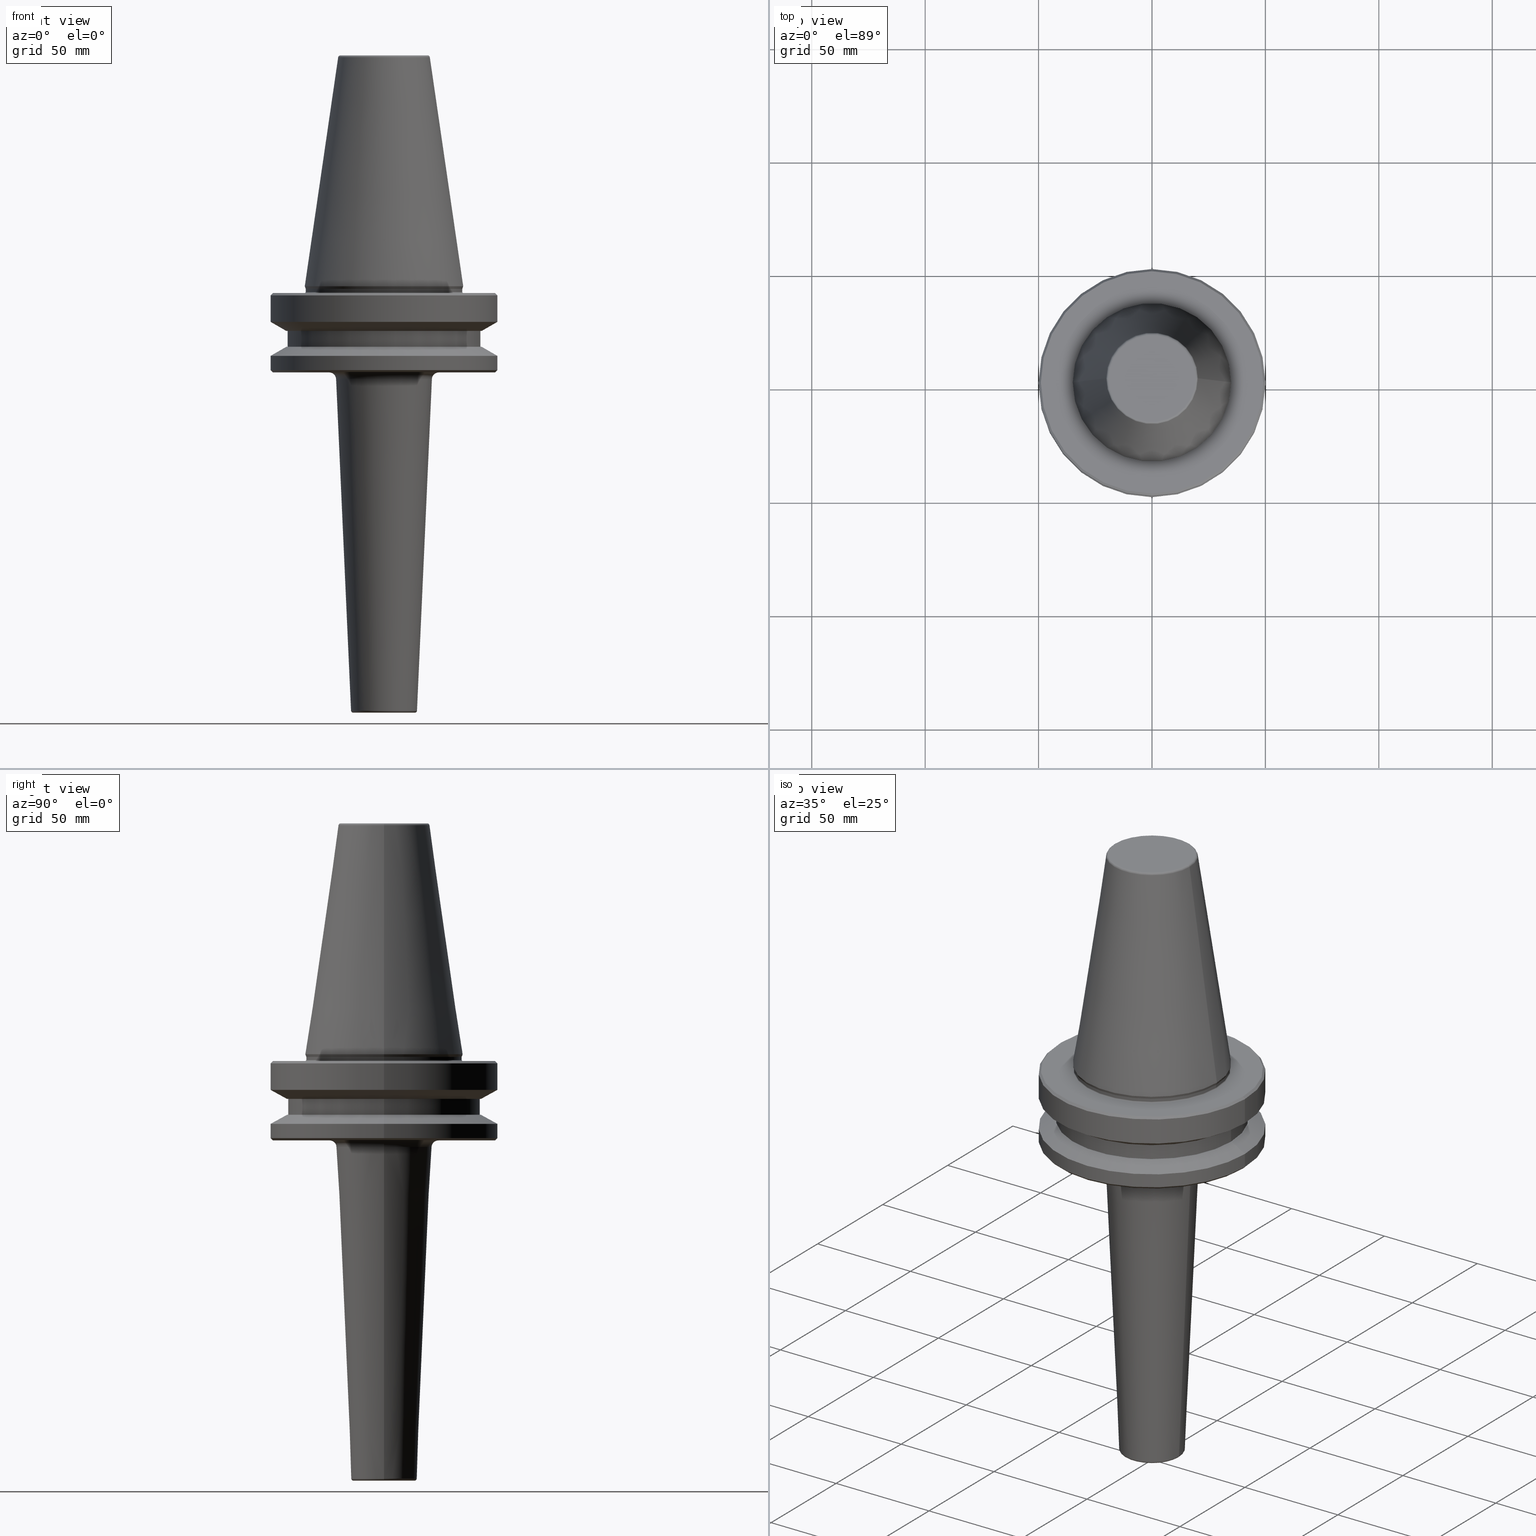
[diagram: canonical four-view strip — front | top / right | iso, engineering-drawing reading convention]
A machine part, canonical four-view strip (front | top / right | iso — engineering-drawing reading convention). The complete STEP part file that produces these views, byte-faithful:
ISO-10303-21;
HEADER;
FILE_DESCRIPTION (( 'STEP AP203' ),
    '1' );
FILE_NAME ('BT50 MCA16 150 AD+B-2.5G 25000 SL.STEP',
    '2019-05-24T11:07:56',
    ( '' ),
    ( '' ),
    'SwSTEP 2.0',
    'SolidWorks 2014',
    '' );
FILE_SCHEMA (( 'CONFIG_CONTROL_DESIGN' ));
ENDSEC;

DATA;
#1 = EDGE_CURVE ( 'NONE', #184, #511, #963, .T. ) ;
#2 = ADVANCED_FACE ( 'NONE', ( #711 ), #567, .T. ) ;
#3 = AXIS2_PLACEMENT_3D ( 'NONE', #646, #348, #433 ) ;
#4 = CARTESIAN_POINT ( 'NONE',  ( 34.50000000000000000, 0.0000000000000000000, 124.5046326327850600 ) ) ;
#5 = DIRECTION ( 'NONE',  ( -0.0000000000000000000, -0.0000000000000000000, 1.000000000000000000 ) ) ;
#6 = VECTOR ( 'NONE', #724, 1000.000000000000000 ) ;
#7 = ORIENTED_EDGE ( 'NONE', *, *, #923, .T. ) ;
#8 = CARTESIAN_POINT ( 'NONE',  ( 0.0000000000000000000, 0.0000000000000000000, -19.70000000000001000 ) ) ;
#9 = EDGE_CURVE ( 'NONE', #723, #997, #308, .T. ) ;
#10 = AXIS2_PLACEMENT_3D ( 'NONE', #75, #738, #447 ) ;
#11 = CARTESIAN_POINT ( 'NONE',  ( 34.92499999999999700, 0.0000000000000000000, 0.0000000000000000000 ) ) ;
#12 = CARTESIAN_POINT ( 'NONE',  ( 0.0000000000000000000, 0.0000000000000000000, -3.999999999999989800 ) ) ;
#13 = EDGE_CURVE ( 'NONE', #876, #536, #113, .T. ) ;
#14 = DIRECTION ( 'NONE',  ( 1.000000000000000000, 0.0000000000000000000, 0.0000000000000000000 ) ) ;
#15 = CARTESIAN_POINT ( 'NONE',  ( 49.00000000000000000, 0.0000000000000000000, -38.00000000000002100 ) ) ;
#16 = CC_DESIGN_APPROVAL ( #969, ( #918 ) ) ;
#17 = DIRECTION ( 'NONE',  ( -0.0000000000000000000, -0.0000000000000000000, 1.000000000000000000 ) ) ;
#18 = ORIENTED_EDGE ( 'NONE', *, *, #101, .F. ) ;
#19 = EDGE_LOOP ( 'NONE', ( #79, #357, #335, #194 ) ) ;
#20 = DIRECTION ( 'NONE',  ( 1.000000000000000000, 0.0000000000000000000, 0.0000000000000000000 ) ) ;
#21 = EDGE_CURVE ( 'NONE', #853, #333, #730, .T. ) ;
#22 = ORIENTED_EDGE ( 'NONE', *, *, #135, .T. ) ;
#23 = EDGE_CURVE ( 'NONE', #772, #259, #160, .T. ) ;
#24 = CARTESIAN_POINT ( 'NONE',  ( 50.00000000000000000, 0.0000000000000000000, -37.00000000000002100 ) ) ;
#25 = ORIENTED_EDGE ( 'NONE', *, *, #195, .T. ) ;
#26 = CARTESIAN_POINT ( 'NONE',  ( 20.20381605152244500, 3.375666405914009100E-015, 100.9443082272672900 ) ) ;
#27 = VERTEX_POINT ( 'NONE', #282 ) ;
#28 = CARTESIAN_POINT ( 'NONE',  ( 0.0000000000000000000, 0.0000000000000000000, -40.86513648025557900 ) ) ;
#29 = DIRECTION ( 'NONE',  ( 1.000000000000000000, 0.0000000000000000000, 0.0000000000000000000 ) ) ;
#30 = CARTESIAN_POINT ( 'NONE',  ( 0.0000000000000000000, 0.0000000000000000000, -38.00000000000002100 ) ) ;
#31 = AXIS2_PLACEMENT_3D ( 'NONE', #118, #829, #351 ) ;
#32 = FACE_BOUND ( 'NONE', #975, .T. ) ;
#33 = CIRCLE ( 'NONE', #910, 13.54398801205987000 ) ;
#34 = ORIENTED_EDGE ( 'NONE', *, *, #446, .T. ) ;
#35 = EDGE_CURVE ( 'NONE', #77, #293, #706, .T. ) ;
#36 = DIRECTION ( 'NONE',  ( -0.0000000000000000000, -0.0000000000000000000, 1.000000000000000000 ) ) ;
#37 = AXIS2_PLACEMENT_3D ( 'NONE', #880, #898, #228 ) ;
#38 = CARTESIAN_POINT ( 'NONE',  ( -50.00000000000000000, 0.0000000000000000000, -30.69977999677324500 ) ) ;
#39 = EDGE_CURVE ( 'NONE', #702, #360, #100, .T. ) ;
#40 = DIRECTION ( 'NONE',  ( 1.000000000000000000, 0.0000000000000000000, 0.0000000000000000000 ) ) ;
#41 = APPROVAL_PERSON_ORGANIZATION ( #925, #969, #930 ) ;
#42 = PERSON_AND_ORGANIZATION_ROLE ( 'classification_officer' ) ;
#43 = ORIENTED_EDGE ( 'NONE', *, *, #81, .F. ) ;
#44 = ORIENTED_EDGE ( 'NONE', *, *, #957, .T. ) ;
#45 = LINE ( 'NONE', #88, #268 ) ;
#46 = ORIENTED_EDGE ( 'NONE', *, *, #275, .F. ) ;
#47 = DIRECTION ( 'NONE',  ( -0.0000000000000000000, -0.0000000000000000000, 1.000000000000000000 ) ) ;
#48 = AXIS2_PLACEMENT_3D ( 'NONE', #631, #996, #622 ) ;
#49 = EDGE_CURVE ( 'NONE', #126, #477, #33, .T. ) ;
#50 = CARTESIAN_POINT ( 'NONE',  ( 0.0000000000000000000, 3.852667479542930100E-013, -188.0000000000000000 ) ) ;
#51 = ADVANCED_FACE ( 'NONE', ( #719 ), #718, .T. ) ;
#52 = CARTESIAN_POINT ( 'NONE',  ( 0.0000000000000000000, 0.0000000000000000000, 0.0000000000000000000 ) ) ;
#53 = EDGE_LOOP ( 'NONE', ( #388, #994, #916, #310 ) ) ;
#54 = AXIS2_PLACEMENT_3D ( 'NONE', #65, #436, #429 ) ;
#55 = EDGE_CURVE ( 'NONE', #27, #288, #912, .T. ) ;
#56 = LINE ( 'NONE', #799, #87 ) ;
#57 = DIRECTION ( 'NONE',  ( 1.000000000000000000, 0.0000000000000000000, 0.0000000000000000000 ) ) ;
#58 = COORDINATED_UNIVERSAL_TIME_OFFSET ( 5, 30, .AHEAD. ) ;
#59 = AXIS2_PLACEMENT_3D ( 'NONE', #334, #231, #1003 ) ;
#60 = ORIENTED_EDGE ( 'NONE', *, *, #745, .F. ) ;
#61 = APPROVAL_STATUS ( 'not_yet_approved' ) ;
#62 = DIRECTION ( 'NONE',  ( -0.0000000000000000000, -0.0000000000000000000, 1.000000000000000000 ) ) ;
#63 = EDGE_CURVE ( 'NONE', #103, #536, #128, .T. ) ;
#64 = ADVANCED_FACE ( 'NONE', ( #219 ), #557, .T. ) ;
#65 = CARTESIAN_POINT ( 'NONE',  ( 0.0000000000000000000, 0.0000000000000000000, -187.0000000000000000 ) ) ;
#66 = EDGE_CURVE ( 'NONE', #120, #494, #384, .T. ) ;
#67 = ORIENTED_EDGE ( 'NONE', *, *, #76, .T. ) ;
#68 = CONICAL_SURFACE ( 'NONE', #185, 43.07217782649103600, 1.047197551196598100 ) ;
#69 = DIRECTION ( 'NONE',  ( -0.0000000000000000000, -0.0000000000000000000, 1.000000000000000000 ) ) ;
#70 = CIRCLE ( 'NONE', #956, 42.50000000000000000 ) ;
#71 = DATE_AND_TIME ( #641, #670 ) ;
#72 = VECTOR ( 'NONE', #684, 1000.000000000000000 ) ;
#73 = CC_DESIGN_PERSON_AND_ORGANIZATION_ASSIGNMENT ( #742, #551, ( #918 ) ) ;
#74 = FACE_OUTER_BOUND ( 'NONE', #556, .T. ) ;
#75 = CARTESIAN_POINT ( 'NONE',  ( 0.0000000000000000000, 0.0000000000000000000, -187.0449545065815200 ) ) ;
#76 = EDGE_CURVE ( 'NONE', #853, #288, #258, .T. ) ;
#77 = VERTEX_POINT ( 'NONE', #690 ) ;
#78 = DIRECTION ( 'NONE',  ( 0.0000000000000000000, 0.0000000000000000000, -1.000000000000000000 ) ) ;
#79 = ORIENTED_EDGE ( 'NONE', *, *, #295, .F. ) ;
#80 = CARTESIAN_POINT ( 'NONE',  ( 0.0000000000000000000, 0.0000000000000000000, -2.499999999999988500 ) ) ;
#81 = EDGE_CURVE ( 'NONE', #951, #184, #410, .T. ) ;
#82 = DIRECTION ( 'NONE',  ( -0.1443082272673000800, 0.0000000000000000000, -0.9895327864921754600 ) ) ;
#83 = DIRECTION ( 'NONE',  ( -0.0000000000000000000, -0.0000000000000000000, 1.000000000000000000 ) ) ;
#84 = CIRCLE ( 'NONE', #152, 42.50000000000000000 ) ;
#85 = DIRECTION ( 'NONE',  ( 1.000000000000000000, 0.0000000000000000000, 0.0000000000000000000 ) ) ;
#86 = FACE_OUTER_BOUND ( 'NONE', #812, .T. ) ;
#87 = VECTOR ( 'NONE', #356, 1000.000000000000000 ) ;
#88 = CARTESIAN_POINT ( 'NONE',  ( 50.00000000000000000, 6.123233995736766100E-015, -30.69977999677324500 ) ) ;
#89 = AXIS2_PLACEMENT_3D ( 'NONE', #710, #794, #271 ) ;
#90 = ORIENTED_EDGE ( 'NONE', *, *, #215, .T. ) ;
#91 = ORIENTED_EDGE ( 'NONE', *, *, #865, .T. ) ;
#92 = EDGE_CURVE ( 'NONE', #574, #521, #382, .T. ) ;
#93 = EDGE_LOOP ( 'NONE', ( #379, #142, #169, #409 ) ) ;
#94 = CARTESIAN_POINT ( 'NONE',  ( 0.0000000000000000000, 0.0000000000000000000, -38.00000000000000700 ) ) ;
#95 = AXIS2_PLACEMENT_3D ( 'NONE', #115, #69, #636 ) ;
#96 = DIRECTION ( 'NONE',  ( -0.8660254037844388200, 1.060575238724907200E-016, 0.4999999999999997200 ) ) ;
#97 = AXIS2_PLACEMENT_3D ( 'NONE', #415, #62, #642 ) ;
#98 = EDGE_LOOP ( 'NONE', ( #25, #202, #117, #174 ) ) ;
#99 = LINE ( 'NONE', #38, #72 ) ;
#100 = CIRCLE ( 'NONE', #143, 49.00000000000000000 ) ;
#101 = EDGE_CURVE ( 'NONE', #245, #574, #626, .T. ) ;
#102 = DIRECTION ( 'NONE',  ( 1.000000000000000000, 0.0000000000000000000, 0.0000000000000000000 ) ) ;
#103 = VERTEX_POINT ( 'NONE', #265 ) ;
#104 = PERSON_AND_ORGANIZATION_ROLE ( 'design_supplier' ) ;
#105 = VERTEX_POINT ( 'NONE', #544 ) ;
#106 = DIRECTION ( 'NONE',  ( 1.000000000000000000, 0.0000000000000000000, 0.0000000000000000000 ) ) ;
#107 = AXIS2_PLACEMENT_3D ( 'NONE', #375, #309, #532 ) ;
#108 = AXIS2_PLACEMENT_3D ( 'NONE', #852, #921, #959 ) ;
#109 = CARTESIAN_POINT ( 'NONE',  ( -42.50000000000000000, 5.204748896376250900E-015, -26.69999999999998900 ) ) ;
#110 = ORIENTED_EDGE ( 'NONE', *, *, #320, .T. ) ;
#111 = EDGE_LOOP ( 'NONE', ( #683, #851, #7, #304 ) ) ;
#112 = CARTESIAN_POINT ( 'NONE',  ( -50.00000000000000000, 6.123233995736766100E-015, -3.999999999999989800 ) ) ;
#113 = CIRCLE ( 'NONE', #964, 0.5000000000000004400 ) ;
#114 = ORIENTED_EDGE ( 'NONE', *, *, #137, .F. ) ;
#115 = CARTESIAN_POINT ( 'NONE',  ( 0.0000000000000000000, 0.0000000000000000000, 100.7999999999999800 ) ) ;
#116 = AXIS2_PLACEMENT_3D ( 'NONE', #755, #667, #298 ) ;
#117 = ORIENTED_EDGE ( 'NONE', *, *, #320, .F. ) ;
#118 = CARTESIAN_POINT ( 'NONE',  ( 0.0000000000000000000, 0.0000000000000000000, -19.70000000000001000 ) ) ;
#119 = DIRECTION ( 'NONE',  ( -0.0000000000000000000, -0.0000000000000000000, 1.000000000000000000 ) ) ;
#120 = VERTEX_POINT ( 'NONE', #512 ) ;
#121 = ORIENTED_EDGE ( 'NONE', *, *, #92, .T. ) ;
#122 = DIRECTION ( 'NONE',  ( 1.000000000000000000, 0.0000000000000000000, 0.0000000000000000000 ) ) ;
#123 = DIRECTION ( 'NONE',  ( -0.0000000000000000000, -0.0000000000000000000, 1.000000000000000000 ) ) ;
#124 = DIRECTION ( 'NONE',  ( -0.7071067811865474600, 0.0000000000000000000, -0.7071067811865475700 ) ) ;
#125 = DIRECTION ( 'NONE',  ( 0.0000000000000000000, 0.0000000000000000000, -1.000000000000000000 ) ) ;
#126 = VERTEX_POINT ( 'NONE', #312 ) ;
#127 = FACE_OUTER_BOUND ( 'NONE', #489, .T. ) ;
#128 = CIRCLE ( 'NONE', #292, 35.00000000000000000 ) ;
#129 = EDGE_CURVE ( 'NONE', #466, #939, #393, .T. ) ;
#130 = ORIENTED_EDGE ( 'NONE', *, *, #35, .F. ) ;
#131 = ORIENTED_EDGE ( 'NONE', *, *, #39, .F. ) ;
#132 = EDGE_LOOP ( 'NONE', ( #526, #652 ) ) ;
#133 = CC_DESIGN_DATE_AND_TIME_ASSIGNMENT ( #516, #249, ( #918 ) ) ;
#134 = DIRECTION ( 'NONE',  ( -0.0000000000000000000, -0.0000000000000000000, 1.000000000000000000 ) ) ;
#135 = EDGE_CURVE ( 'NONE', #757, #27, #592, .T. ) ;
#136 = AXIS2_PLACEMENT_3D ( 'NONE', #168, #987, #296 ) ;
#137 = EDGE_CURVE ( 'NONE', #951, #950, #428, .T. ) ;
#138 = FACE_OUTER_BOUND ( 'NONE', #862, .T. ) ;
#139 = ORIENTED_EDGE ( 'NONE', *, *, #751, .F. ) ;
#140 = LOCAL_TIME ( 16, 37, 56.00000000000000000, #412 ) ;
#141 = DIRECTION ( 'NONE',  ( 1.000000000000000000, 0.0000000000000000000, 0.0000000000000000000 ) ) ;
#142 = ORIENTED_EDGE ( 'NONE', *, *, #878, .T. ) ;
#143 = AXIS2_PLACEMENT_3D ( 'NONE', #227, #153, #775 ) ;
#144 = CARTESIAN_POINT ( 'NONE',  ( -50.00000000000000000, 6.123233995736766100E-015, -30.69977999677324500 ) ) ;
#145 = ADVANCED_FACE ( 'NONE', ( #86, #32 ), #644, .F. ) ;
#146 = CARTESIAN_POINT ( 'NONE',  ( 0.0000000000000000000, 0.0000000000000000000, 0.0000000000000000000 ) ) ;
#147 = EDGE_CURVE ( 'NONE', #120, #105, #183, .T. ) ;
#148 = AXIS2_PLACEMENT_3D ( 'NONE', #52, #578, #744 ) ;
#149 = CIRCLE ( 'NONE', #581, 34.50000000000000000 ) ;
#150 = TOROIDAL_SURFACE ( 'NONE', #239, 13.54398801205987000, 0.9999999999999892300 ) ;
#151 = EDGE_LOOP ( 'NONE', ( #944, #691, #43, #367 ) ) ;
#152 = AXIS2_PLACEMENT_3D ( 'NONE', #209, #244, #85 ) ;
#153 = DIRECTION ( 'NONE',  ( -0.0000000000000000000, -0.0000000000000000000, 1.000000000000000000 ) ) ;
#154 = PERSON_AND_ORGANIZATION ( #373, #162 ) ;
#155 = EDGE_LOOP ( 'NONE', ( #517, #399, #363, #838 ) ) ;
#156 = DIRECTION ( 'NONE',  ( 0.0000000000000000000, -1.000000000000000000, 0.0000000000000000000 ) ) ;
#157 = ORIENTED_EDGE ( 'NONE', *, *, #497, .F. ) ;
#158 = AXIS2_PLACEMENT_3D ( 'NONE', #94, #165, #254 ) ;
#159 = ORIENTED_EDGE ( 'NONE', *, *, #522, .T. ) ;
#160 = CIRCLE ( 'NONE', #31, 43.07217782649103600 ) ;
#161 = ORIENTED_EDGE ( 'NONE', *, *, #721, .F. ) ;
#162 = ORGANIZATION ( 'UNSPECIFIED', 'UNSPECIFIED', '' ) ;
#163 = DIRECTION ( 'NONE',  ( -1.000000000000000000, 0.0000000000000000000, 0.0000000000000000000 ) ) ;
#164 = DIRECTION ( 'NONE',  ( 0.8660254037844383700, 1.060575238724906500E-016, -0.5000000000000004400 ) ) ;
#165 = DIRECTION ( 'NONE',  ( -0.0000000000000000000, -0.0000000000000000000, 1.000000000000000000 ) ) ;
#166 = AXIS2_PLACEMENT_3D ( 'NONE', #856, #134, #610 ) ;
#167 = CARTESIAN_POINT ( 'NONE',  ( -42.50000000000000000, 5.204748896376250900E-015, -19.70000000000001000 ) ) ;
#168 = CARTESIAN_POINT ( 'NONE',  ( 0.0000000000000000000, 0.0000000000000000000, -30.69977999677324500 ) ) ;
#169 = ORIENTED_EDGE ( 'NONE', *, *, #420, .T. ) ;
#170 = VECTOR ( 'NONE', #709, 1000.000000000000000 ) ;
#171 = ADVANCED_FACE ( 'NONE', ( #261 ), #537, .T. ) ;
#172 = ORIENTED_EDGE ( 'NONE', *, *, #462, .F. ) ;
#173 = SHAPE_DEFINITION_REPRESENTATION ( #946, #550 ) ;
#174 = ORIENTED_EDGE ( 'NONE', *, *, #21, .F. ) ;
#175 = EDGE_CURVE ( 'NONE', #288, #105, #848, .T. ) ;
#176 = DIRECTION ( 'NONE',  ( 1.000000000000000000, 0.0000000000000000000, 0.0000000000000000000 ) ) ;
#177 = AXIS2_PLACEMENT_3D ( 'NONE', #30, #123, #547 ) ;
#178 = CARTESIAN_POINT ( 'NONE',  ( 0.0000000000000000000, 0.0000000000000000000, -19.70000000000001000 ) ) ;
#179 = PRODUCT_DEFINITION_FORMATION_WITH_SPECIFIED_SOURCE ( 'ANY', '', #674, .NOT_KNOWN. ) ;
#180 = DIRECTION ( 'NONE',  ( -0.0000000000000000000, -0.0000000000000000000, 1.000000000000000000 ) ) ;
#181 = DIRECTION ( 'NONE',  ( -0.04495450658148143800, 5.505339259225986400E-018, 0.9989890351440378100 ) ) ;
#182 = EDGE_CURVE ( 'NONE', #808, #103, #623, .T. ) ;
#183 = LINE ( 'NONE', #561, #464 ) ;
#184 = VERTEX_POINT ( 'NONE', #901 ) ;
#185 = AXIS2_PLACEMENT_3D ( 'NONE', #748, #514, #14 ) ;
#186 = ORIENTED_EDGE ( 'NONE', *, *, #818, .F. ) ;
#187 = CARTESIAN_POINT ( 'NONE',  ( 0.0000000000000000000, 0.0000000000000000000, -37.00000000000002100 ) ) ;
#188 = DIRECTION ( 'NONE',  ( 0.7071067811865474600, 0.0000000000000000000, 0.7071067811865475700 ) ) ;
#189 = VECTOR ( 'NONE', #124, 1000.000000000000000 ) ;
#190 = DIRECTION ( 'NONE',  ( 1.000000000000000000, 0.0000000000000000000, 0.0000000000000000000 ) ) ;
#191 = AXIS2_PLACEMENT_3D ( 'NONE', #640, #342, #102 ) ;
#192 = CARTESIAN_POINT ( 'NONE',  ( -13.54398801205987000, 1.719830592879546100E-015, -187.9999999999999700 ) ) ;
#193 = ADVANCED_FACE ( 'NONE', ( #776 ), #238, .T. ) ;
#194 = ORIENTED_EDGE ( 'NONE', *, *, #843, .F. ) ;
#195 = EDGE_CURVE ( 'NONE', #853, #120, #874, .T. ) ;
#196 = FACE_OUTER_BOUND ( 'NONE', #53, .T. ) ;
#197 = APPROVAL_DATE_TIME ( #990, #596 ) ;
#198 = AXIS2_PLACEMENT_3D ( 'NONE', #187, #586, #346 ) ;
#199 = CALENDAR_DATE ( 2019, 24, 5 ) ;
#200 = ORIENTED_EDGE ( 'NONE', *, *, #485, .T. ) ;
#201 = AXIS2_PLACEMENT_3D ( 'NONE', #8, #404, #621 ) ;
#202 = ORIENTED_EDGE ( 'NONE', *, *, #66, .T. ) ;
#203 = CARTESIAN_POINT ( 'NONE',  ( -34.50000000000000000, 4.255647627037052700E-015, -2.499999999999988500 ) ) ;
#204 = AXIS2_PLACEMENT_3D ( 'NONE', #427, #919, #390 ) ;
#205 = DIRECTION ( 'NONE',  ( 1.000000000000000000, 0.0000000000000000000, 0.0000000000000000000 ) ) ;
#206 = CIRCLE ( 'NONE', #204, 34.50000000000000000 ) ;
#207 = CARTESIAN_POINT ( 'NONE',  ( 0.0000000000000000000, 0.0000000000000000000, -2.999999999999988900 ) ) ;
#208 = LINE ( 'NONE', #502, #306 ) ;
#209 = CARTESIAN_POINT ( 'NONE',  ( 0.0000000000000000000, 0.0000000000000000000, -26.69999999999998900 ) ) ;
#210 = FACE_OUTER_BOUND ( 'NONE', #93, .T. ) ;
#211 = CIRCLE ( 'NONE', #191, 50.00000000000000000 ) ;
#212 = FACE_OUTER_BOUND ( 'NONE', #478, .T. ) ;
#213 = DIRECTION ( 'NONE',  ( -1.000000000000000000, 0.0000000000000000000, -0.0000000000000000000 ) ) ;
#214 = ORIENTED_EDGE ( 'NONE', *, *, #250, .T. ) ;
#215 = EDGE_CURVE ( 'NONE', #536, #103, #289, .T. ) ;
#216 = AXIS2_PLACEMENT_3D ( 'NONE', #875, #83, #225 ) ;
#217 = CARTESIAN_POINT ( 'NONE',  ( 0.0000000000000000000, 0.0000000000000000000, -1.167677903268202300 ) ) ;
#218 = CARTESIAN_POINT ( 'NONE',  ( 43.07217782649103600, 0.0000000000000000000, -19.70000000000001000 ) ) ;
#219 = FACE_OUTER_BOUND ( 'NONE', #913, .T. ) ;
#220 = AXIS2_PLACEMENT_3D ( 'NONE', #538, #692, #400 ) ;
#221 = CONICAL_SURFACE ( 'NONE', #888, 50.00000000000000000, 1.047197551196597200 ) ;
#222 = FACE_OUTER_BOUND ( 'NONE', #630, .T. ) ;
#223 = LINE ( 'NONE', #847, #628 ) ;
#224 = CARTESIAN_POINT ( 'NONE',  ( 42.50000000000000000, 0.0000000000000000000, -26.69999999999998900 ) ) ;
#225 = DIRECTION ( 'NONE',  ( 1.000000000000000000, 0.0000000000000000000, 0.0000000000000000000 ) ) ;
#226 = DIRECTION ( 'NONE',  ( -1.000000000000000000, 0.0000000000000000000, 0.0000000000000000000 ) ) ;
#227 = CARTESIAN_POINT ( 'NONE',  ( 0.0000000000000000000, 0.0000000000000000000, -38.00000000000002100 ) ) ;
#228 = DIRECTION ( 'NONE',  ( 1.000000000000000000, 0.0000000000000000000, 0.0000000000000000000 ) ) ;
#229 = EDGE_CURVE ( 'NONE', #77, #997, #456, .T. ) ;
#230 = DIRECTION ( 'NONE',  ( 0.0000000000000000000, 0.0000000000000000000, -1.000000000000000000 ) ) ;
#231 = DIRECTION ( 'NONE',  ( 0.0000000000000000000, 0.0000000000000000000, -1.000000000000000000 ) ) ;
#232 = APPLICATION_CONTEXT ( 'configuration controlled 3d designs of mechanical parts and assemblies' ) ;
#233 = ORIENTED_EDGE ( 'NONE', *, *, #664, .T. ) ;
#234 = ORIENTED_EDGE ( 'NONE', *, *, #506, .F. ) ;
#235 = APPROVAL ( #61, 'UNSPECIFIED' ) ;
#236 = COORDINATED_UNIVERSAL_TIME_OFFSET ( 5, 30, .AHEAD. ) ;
#237 = DIRECTION ( 'NONE',  ( 1.000000000000000000, 0.0000000000000000000, 0.0000000000000000000 ) ) ;
#238 = CONICAL_SURFACE ( 'NONE', #513, 34.50000000000000000, 0.3490658503988654500 ) ;
#239 = AXIS2_PLACEMENT_3D ( 'NONE', #519, #286, #264 ) ;
#240 = ORIENTED_EDGE ( 'NONE', *, *, #1, .F. ) ;
#241 = ORIENTED_EDGE ( 'NONE', *, *, #76, .F. ) ;
#242 = ORIENTED_EDGE ( 'NONE', *, *, #923, .F. ) ;
#243 = DIRECTION ( 'NONE',  ( 1.000000000000000000, 0.0000000000000000000, 0.0000000000000000000 ) ) ;
#244 = DIRECTION ( 'NONE',  ( -0.0000000000000000000, -0.0000000000000000000, 1.000000000000000000 ) ) ;
#245 = VERTEX_POINT ( 'NONE', #539 ) ;
#246 = DIRECTION ( 'NONE',  ( 1.000000000000000000, 0.0000000000000000000, 0.0000000000000000000 ) ) ;
#247 = VECTOR ( 'NONE', #119, 1000.000000000000000 ) ;
#248 = ORIENTED_EDGE ( 'NONE', *, *, #9, .F. ) ;
#249 = DATE_TIME_ROLE ( 'creation_date' ) ;
#250 = EDGE_CURVE ( 'NONE', #360, #702, #676, .T. ) ;
#251 = ORIENTED_EDGE ( 'NONE', *, *, #546, .F. ) ;
#252 = CARTESIAN_POINT ( 'NONE',  ( 0.0000000000000000000, 0.0000000000000000000, -19.70000000000001000 ) ) ;
#253 = AXIS2_PLACEMENT_3D ( 'NONE', #861, #327, #783 ) ;
#254 = DIRECTION ( 'NONE',  ( 1.000000000000000000, 0.0000000000000000000, 0.0000000000000000000 ) ) ;
#255 = AXIS2_PLACEMENT_3D ( 'NONE', #12, #493, #325 ) ;
#256 = ADVANCED_FACE ( 'NONE', ( #585 ), #369, .T. ) ;
#257 = DIRECTION ( 'NONE',  ( -1.000000000000000000, 0.0000000000000000000, -0.0000000000000000000 ) ) ;
#258 = LINE ( 'NONE', #577, #350 ) ;
#259 = VERTEX_POINT ( 'NONE', #323 ) ;
#260 = ORIENTED_EDGE ( 'NONE', *, *, #397, .T. ) ;
#261 = FACE_OUTER_BOUND ( 'NONE', #353, .T. ) ;
#262 = ADVANCED_FACE ( 'NONE', ( #890 ), #867, .T. ) ;
#263 = DIRECTION ( 'NONE',  ( -0.0000000000000000000, -0.0000000000000000000, 1.000000000000000000 ) ) ;
#264 = DIRECTION ( 'NONE',  ( 1.000000000000000000, 0.0000000000000000000, 0.0000000000000000000 ) ) ;
#265 = CARTESIAN_POINT ( 'NONE',  ( 35.00000000000000000, 0.0000000000000000000, -2.999999999999995600 ) ) ;
#266 = DIRECTION ( 'NONE',  ( -0.0000000000000000000, -0.0000000000000000000, 1.000000000000000000 ) ) ;
#267 = CARTESIAN_POINT ( 'NONE',  ( 0.0000000000000000000, 0.0000000000000000000, -1.167677903268202300 ) ) ;
#268 = VECTOR ( 'NONE', #164, 1000.000000000000000 ) ;
#269 = AXIS2_PLACEMENT_3D ( 'NONE', #943, #887, #797 ) ;
#270 = DATE_AND_TIME ( #604, #756 ) ;
#271 = DIRECTION ( 'NONE',  ( 1.000000000000000000, 0.0000000000000000000, 0.0000000000000000000 ) ) ;
#272 = AXIS2_PLACEMENT_3D ( 'NONE', #854, #78, #213 ) ;
#273 = ORIENTED_EDGE ( 'NONE', *, *, #1, .T. ) ;
#274 = FACE_OUTER_BOUND ( 'NONE', #98, .T. ) ;
#275 = EDGE_CURVE ( 'NONE', #677, #872, #569, .T. ) ;
#276 = ORIENTED_EDGE ( 'NONE', *, *, #878, .F. ) ;
#277 = VECTOR ( 'NONE', #510, 1000.000000000000000 ) ;
#278 = CIRCLE ( 'NONE', #678, 50.00000000000000000 ) ;
#279 = ADVANCED_FACE ( 'NONE', ( #465 ), #328, .T. ) ;
#280 = CC_DESIGN_APPROVAL ( #235, ( #179 ) ) ;
#281 = CARTESIAN_POINT ( 'NONE',  ( 0.0000000000000000000, 0.0000000000000000000, 100.9443082272672900 ) ) ;
#282 = CARTESIAN_POINT ( 'NONE',  ( 34.50000000000000000, 0.0000000000000000000, -1.167677903268202300 ) ) ;
#283 = AXIS2_PLACEMENT_3D ( 'NONE', #354, #949, #590 ) ;
#284 = ADVANCED_FACE ( 'NONE', ( #780, #606 ), #505, .F. ) ;
#285 = CARTESIAN_POINT ( 'NONE',  ( 0.0000000000000000000, 0.0000000000000000000, -2.500000000000002200 ) ) ;
#286 = DIRECTION ( 'NONE',  ( -0.0000000000000000000, -0.0000000000000000000, 1.000000000000000000 ) ) ;
#287 = ORIENTED_EDGE ( 'NONE', *, *, #735, .T. ) ;
#288 = VERTEX_POINT ( 'NONE', #11 ) ;
#289 = CIRCLE ( 'NONE', #468, 35.00000000000000000 ) ;
#290 = CIRCLE ( 'NONE', #857, 49.00000000000000000 ) ;
#291 = DIRECTION ( 'NONE',  ( -0.0000000000000000000, -0.0000000000000000000, 1.000000000000000000 ) ) ;
#292 = AXIS2_PLACEMENT_3D ( 'NONE', #207, #602, #122 ) ;
#293 = VERTEX_POINT ( 'NONE', #339 ) ;
#294 = ADVANCED_FACE ( 'NONE', ( #937 ), #697, .T. ) ;
#295 = EDGE_CURVE ( 'NONE', #477, #939, #686, .T. ) ;
#296 = DIRECTION ( 'NONE',  ( 1.000000000000000000, 0.0000000000000000000, 0.0000000000000000000 ) ) ;
#297 = AXIS2_PLACEMENT_3D ( 'NONE', #490, #553, #246 ) ;
#298 = DIRECTION ( 'NONE',  ( 1.000000000000000000, 0.0000000000000000000, 0.0000000000000000000 ) ) ;
#299 = AXIS2_PLACEMENT_3D ( 'NONE', #981, #659, #163 ) ;
#300 = CARTESIAN_POINT ( 'NONE',  ( 0.0000000000000000000, 0.0000000000000000000, -40.86513648025557900 ) ) ;
#301 = CIRCLE ( 'NONE', #907, 19.21428326503027200 ) ;
#302 = AXIS2_PLACEMENT_3D ( 'NONE', #307, #917, #774 ) ;
#303 = ADVANCED_FACE ( 'NONE', ( #634 ), #68, .T. ) ;
#304 = ORIENTED_EDGE ( 'NONE', *, *, #828, .F. ) ;
#305 = PERSON_AND_ORGANIZATION ( #373, #162 ) ;
#306 = VECTOR ( 'NONE', #181, 1000.000000000000000 ) ;
#307 = CARTESIAN_POINT ( 'NONE',  ( 0.0000000000000000000, 0.0000000000000000000, -2.999999999999988900 ) ) ;
#308 = CIRCLE ( 'NONE', #655, 21.12106885838854000 ) ;
#309 = DIRECTION ( 'NONE',  ( -0.0000000000000000000, -0.0000000000000000000, 1.000000000000000000 ) ) ;
#310 = ORIENTED_EDGE ( 'NONE', *, *, #648, .F. ) ;
#311 = PLANE ( 'NONE',  #559 ) ;
#312 = CARTESIAN_POINT ( 'NONE',  ( 13.54398801205987000, 0.0000000000000000000, -187.9999999999999700 ) ) ;
#313 = CARTESIAN_POINT ( 'NONE',  ( 0.0000000000000000000, 0.0000000000000000000, -3.999999999999989800 ) ) ;
#314 = CARTESIAN_POINT ( 'NONE',  ( 0.0000000000000000000, 0.0000000000000000000, 124.5046326327850600 ) ) ;
#315 = CARTESIAN_POINT ( 'NONE',  ( 35.00000000000000000, 0.0000000000000000000, -2.500000000000002200 ) ) ;
#316 = LOCAL_TIME ( 16, 37, 56.00000000000000000, #236 ) ;
#317 = FACE_OUTER_BOUND ( 'NONE', #19, .T. ) ;
#318 = VERTEX_POINT ( 'NONE', #109 ) ;
#319 = CARTESIAN_POINT ( 'NONE',  ( 0.0000000000000000000, 0.0000000000000000000, -2.500000000000002200 ) ) ;
#320 = EDGE_CURVE ( 'NONE', #333, #494, #440, .T. ) ;
#321 = CARTESIAN_POINT ( 'NONE',  ( 34.50000000000000000, 0.0000000000000000000, -1.167677903268202300 ) ) ;
#322 = EDGE_LOOP ( 'NONE', ( #345, #777, #823, #802 ) ) ;
#323 = CARTESIAN_POINT ( 'NONE',  ( -43.07217782649103600, 5.699027233244276000E-015, -19.70000000000001000 ) ) ;
#324 = AXIS2_PLACEMENT_3D ( 'NONE', #608, #666, #230 ) ;
#325 = DIRECTION ( 'NONE',  ( 1.000000000000000000, 0.0000000000000000000, 0.0000000000000000000 ) ) ;
#326 = ORIENTED_EDGE ( 'NONE', *, *, #135, .F. ) ;
#327 = DIRECTION ( 'NONE',  ( 0.0000000000000000000, 0.0000000000000000000, -1.000000000000000000 ) ) ;
#328 = CYLINDRICAL_SURFACE ( 'NONE', #297, 34.50000000000000000 ) ;
#329 = ADVANCED_FACE ( 'NONE', ( #138 ), #966, .F. ) ;
#330 = VECTOR ( 'NONE', #17, 1000.000000000000000 ) ;
#331 = VERTEX_POINT ( 'NONE', #167 ) ;
#332 = EDGE_CURVE ( 'NONE', #876, #757, #368, .T. ) ;
#333 = VERTEX_POINT ( 'NONE', #629 ) ;
#334 = CARTESIAN_POINT ( 'NONE',  ( 0.0000000000000000000, 0.0000000000000000000, -30.69977999677324500 ) ) ;
#335 = ORIENTED_EDGE ( 'NONE', *, *, #786, .T. ) ;
#336 = CARTESIAN_POINT ( 'NONE',  ( 50.00000000000000000, 6.123233995736766100E-015, -3.999999999999989800 ) ) ;
#337 = CARTESIAN_POINT ( 'NONE',  ( 0.0000000000000000000, 0.0000000000000000000, -38.00000000000000700 ) ) ;
#338 = ADVANCED_FACE ( 'NONE', ( #593, #833 ), #708, .F. ) ;
#339 = CARTESIAN_POINT ( 'NONE',  ( 24.11803596382066000, 0.0000000000000000000, -38.00000000000000700 ) ) ;
#340 = CC_DESIGN_PERSON_AND_ORGANIZATION_ASSIGNMENT ( #383, #968, ( #179 ) ) ;
#341 = DATE_TIME_ROLE ( 'classification_date' ) ;
#342 = DIRECTION ( 'NONE',  ( -0.0000000000000000000, -0.0000000000000000000, 1.000000000000000000 ) ) ;
#343 = AXIS2_PLACEMENT_3D ( 'NONE', #448, #291, #530 ) ;
#344 = ADVANCED_FACE ( 'NONE', ( #758 ), #900, .T. ) ;
#345 = ORIENTED_EDGE ( 'NONE', *, *, #818, .T. ) ;
#346 = DIRECTION ( 'NONE',  ( 1.000000000000000000, 0.0000000000000000000, 0.0000000000000000000 ) ) ;
#347 = CYLINDRICAL_SURFACE ( 'NONE', #97, 50.00000000000000000 ) ;
#348 = DIRECTION ( 'NONE',  ( -0.0000000000000000000, -0.0000000000000000000, 1.000000000000000000 ) ) ;
#349 = VECTOR ( 'NONE', #771, 999.9999999999998900 ) ;
#350 = VECTOR ( 'NONE', #785, 1000.000000000000000 ) ;
#351 = DIRECTION ( 'NONE',  ( 1.000000000000000000, 0.0000000000000000000, 0.0000000000000000000 ) ) ;
#352 = DIRECTION ( 'NONE',  ( 1.000000000000000000, 0.0000000000000000000, 0.0000000000000000000 ) ) ;
#353 = EDGE_LOOP ( 'NONE', ( #688, #251, #936, #753 ) ) ;
#354 = CARTESIAN_POINT ( 'NONE',  ( -13.54398801205987000, 1.658660156665924300E-015, -187.0000000000000000 ) ) ;
#355 = DIRECTION ( 'NONE',  ( 0.0000000000000000000, 0.0000000000000000000, -1.000000000000000000 ) ) ;
#356 = DIRECTION ( 'NONE',  ( -0.0000000000000000000, -0.0000000000000000000, 1.000000000000000000 ) ) ;
#357 = ORIENTED_EDGE ( 'NONE', *, *, #858, .T. ) ;
#358 = DIRECTION ( 'NONE',  ( 1.000000000000000000, 0.0000000000000000000, 0.0000000000000000000 ) ) ;
#359 = PERSON_AND_ORGANIZATION ( #373, #162 ) ;
#360 = VERTEX_POINT ( 'NONE', #15 ) ;
#361 = AXIS2_PLACEMENT_3D ( 'NONE', #364, #572, #40 ) ;
#362 = DIRECTION ( 'NONE',  ( 0.0000000000000000000, -1.000000000000000000, 0.0000000000000000000 ) ) ;
#363 = ORIENTED_EDGE ( 'NONE', *, *, #175, .F. ) ;
#364 = CARTESIAN_POINT ( 'NONE',  ( 0.0000000000000000000, 43.07217782649103600, -19.70000000000000300 ) ) ;
#365 = ORIENTED_EDGE ( 'NONE', *, *, #765, .F. ) ;
#366 = DIRECTION ( 'NONE',  ( -0.0000000000000000000, -0.0000000000000000000, 1.000000000000000000 ) ) ;
#367 = ORIENTED_EDGE ( 'NONE', *, *, #397, .F. ) ;
#368 = LINE ( 'NONE', #712, #661 ) ;
#369 = CONICAL_SURFACE ( 'NONE', #177, 49.00000000000000000, 0.7853981633974482800 ) ;
#370 = DIRECTION ( 'NONE',  ( 1.000000000000000000, 0.0000000000000000000, 0.0000000000000000000 ) ) ;
#371 = ORIENTED_EDGE ( 'NONE', *, *, #13, .F. ) ;
#372 = CARTESIAN_POINT ( 'NONE',  ( 0.0000000000000000000, 49.00000000000000000, -38.00000000000000700 ) ) ;
#373 = PERSON ( 'UNSPECIFIED', 'UNSPECIFIED', 'UNSPECIFIED', ('UNSPECIFIED'), ('UNSPECIFIED'), ('UNSPECIFIED') ) ;
#374 = AXIS2_PLACEMENT_3D ( 'NONE', #601, #909, #487 ) ;
#375 = CARTESIAN_POINT ( 'NONE',  ( 0.0000000000000000000, 0.0000000000000000000, 124.5046326327850600 ) ) ;
#376 = CARTESIAN_POINT ( 'NONE',  ( -19.21428326503027200, 2.413662457824437800E-015, 101.7999999999999800 ) ) ;
#377 = AXIS2_PLACEMENT_3D ( 'NONE', #430, #571, #243 ) ;
#378 = VECTOR ( 'NONE', #579, 999.9999999999998900 ) ;
#379 = ORIENTED_EDGE ( 'NONE', *, *, #599, .F. ) ;
#380 = CIRCLE ( 'NONE', #442, 43.07217782649103600 ) ;
#381 = DIRECTION ( 'NONE',  ( 0.0000000000000000000, 0.0000000000000000000, -1.000000000000000000 ) ) ;
#382 = LINE ( 'NONE', #658, #439 ) ;
#383 = PERSON_AND_ORGANIZATION ( #373, #162 ) ;
#384 = CIRCLE ( 'NONE', #985, 0.9999999999999974500 ) ;
#385 = EDGE_LOOP ( 'NONE', ( #241, #234, #656, #896 ) ) ;
#386 = DIRECTION ( 'NONE',  ( -0.0000000000000000000, -0.0000000000000000000, 1.000000000000000000 ) ) ;
#387 = ORIENTED_EDGE ( 'NONE', *, *, #515, .F. ) ;
#388 = ORIENTED_EDGE ( 'NONE', *, *, #66, .F. ) ;
#389 = ADVANCED_FACE ( 'NONE', ( #196 ), #453, .T. ) ;
#390 = DIRECTION ( 'NONE',  ( 1.000000000000000000, 0.0000000000000000000, 0.0000000000000000000 ) ) ;
#391 = MECHANICAL_CONTEXT ( 'NONE', #232, 'mechanical' ) ;
#392 = CC_DESIGN_PERSON_AND_ORGANIZATION_ASSIGNMENT ( #637, #104, ( #179 ) ) ;
#393 = CIRCLE ( 'NONE', #10, 14.54297704720391400 ) ;
#394 = ORIENTED_EDGE ( 'NONE', *, *, #332, .F. ) ;
#395 = ORIENTED_EDGE ( 'NONE', *, *, #564, .T. ) ;
#396 = DIRECTION ( 'NONE',  ( 1.000000000000000000, 0.0000000000000000000, 0.0000000000000000000 ) ) ;
#397 = EDGE_CURVE ( 'NONE', #772, #951, #223, .T. ) ;
#398 = ORIENTED_EDGE ( 'NONE', *, *, #35, .T. ) ;
#399 = ORIENTED_EDGE ( 'NONE', *, *, #497, .T. ) ;
#400 = DIRECTION ( 'NONE',  ( -1.000000000000000000, 0.0000000000000000000, 0.0000000000000000000 ) ) ;
#401 = ADVANCED_FACE ( 'NONE', ( #74 ), #914, .T. ) ;
#402 = DIRECTION ( 'NONE',  ( 1.000000000000000000, 0.0000000000000000000, 0.0000000000000000000 ) ) ;
#403 = AXIS2_PLACEMENT_3D ( 'NONE', #217, #895, #455 ) ;
#404 = DIRECTION ( 'NONE',  ( -0.0000000000000000000, -0.0000000000000000000, 1.000000000000000000 ) ) ;
#405 = LINE ( 'NONE', #496, #860 ) ;
#406 = ADVANCED_FACE ( 'NONE', ( #425 ), #864, .T. ) ;
#407 = FACE_BOUND ( 'NONE', #411, .T. ) ;
#408 = CALENDAR_DATE ( 2019, 24, 5 ) ;
#409 = ORIENTED_EDGE ( 'NONE', *, *, #735, .F. ) ;
#410 = CIRCLE ( 'NONE', #89, 50.00000000000000000 ) ;
#411 = EDGE_LOOP ( 'NONE', ( #475, #365 ) ) ;
#412 = COORDINATED_UNIVERSAL_TIME_OFFSET ( 5, 30, .AHEAD. ) ;
#413 = AXIS2_PLACEMENT_3D ( 'NONE', #146, #831, #566 ) ;
#414 = ORIENTED_EDGE ( 'NONE', *, *, #137, .T. ) ;
#415 = CARTESIAN_POINT ( 'NONE',  ( 0.0000000000000000000, 0.0000000000000000000, 124.5046326327850600 ) ) ;
#416 = AXIS2_PLACEMENT_3D ( 'NONE', #762, #366, #689 ) ;
#417 = ORIENTED_EDGE ( 'NONE', *, *, #974, .F. ) ;
#418 = CARTESIAN_POINT ( 'NONE',  ( 0.0000000000000000000, 0.0000000000000000000, -41.00000000000000700 ) ) ;
#419 = ADVANCED_FACE ( 'NONE', ( #317 ), #150, .T. ) ;
#420 = EDGE_CURVE ( 'NONE', #521, #754, #685, .T. ) ;
#421 = CARTESIAN_POINT ( 'NONE',  ( 0.0000000000000000000, 0.0000000000000000000, -1.167677903268202300 ) ) ;
#422 = EDGE_LOOP ( 'NONE', ( #110, #687 ) ) ;
#423 = LINE ( 'NONE', #4, #170 ) ;
#424 = EDGE_LOOP ( 'NONE', ( #233, #398 ) ) ;
#425 = FACE_OUTER_BOUND ( 'NONE', #534, .T. ) ;
#426 = CARTESIAN_POINT ( 'NONE',  ( -35.00000000000000000, 4.286263797015736500E-015, -2.500000000000002200 ) ) ;
#427 = CARTESIAN_POINT ( 'NONE',  ( 0.0000000000000000000, 0.0000000000000000000, -2.499999999999988500 ) ) ;
#428 = LINE ( 'NONE', #737, #6 ) ;
#429 = DIRECTION ( 'NONE',  ( 1.000000000000000000, 0.0000000000000000000, 0.0000000000000000000 ) ) ;
#430 = CARTESIAN_POINT ( 'NONE',  ( 0.0000000000000000000, 0.0000000000000000000, -19.70000000000001000 ) ) ;
#431 = CARTESIAN_POINT ( 'NONE',  ( 0.0000000000000000000, 0.0000000000000000000, -187.9999999999999700 ) ) ;
#432 = EDGE_CURVE ( 'NONE', #614, #331, #70, .T. ) ;
#433 = DIRECTION ( 'NONE',  ( 1.000000000000000000, 0.0000000000000000000, 0.0000000000000000000 ) ) ;
#434 = DIRECTION ( 'NONE',  ( -0.0000000000000000000, -0.0000000000000000000, 1.000000000000000000 ) ) ;
#435 = CARTESIAN_POINT ( 'NONE',  ( 50.00000000000000000, 0.0000000000000000000, -30.69977999677324500 ) ) ;
#436 = DIRECTION ( 'NONE',  ( -0.0000000000000000000, -0.0000000000000000000, 1.000000000000000000 ) ) ;
#437 = VERTEX_POINT ( 'NONE', #529 ) ;
#438 = DIRECTION ( 'NONE',  ( 0.0000000000000000000, 0.0000000000000000000, -1.000000000000000000 ) ) ;
#439 = VECTOR ( 'NONE', #967, 1000.000000000000000 ) ;
#440 = CIRCLE ( 'NONE', #885, 19.21428326503027200 ) ;
#441 = DATE_AND_TIME ( #199, #316 ) ;
#442 = AXIS2_PLACEMENT_3D ( 'NONE', #252, #866, #57 ) ;
#443 = ORIENTED_EDGE ( 'NONE', *, *, #462, .T. ) ;
#444 = DIRECTION ( 'NONE',  ( 1.000000000000000000, 0.0000000000000000000, 0.0000000000000000000 ) ) ;
#445 = ORIENTED_EDGE ( 'NONE', *, *, #39, .T. ) ;
#446 = EDGE_CURVE ( 'NONE', #939, #997, #208, .T. ) ;
#447 = DIRECTION ( 'NONE',  ( 1.000000000000000000, 0.0000000000000000000, 0.0000000000000000000 ) ) ;
#448 = CARTESIAN_POINT ( 'NONE',  ( 0.0000000000000000000, 0.0000000000000000000, -41.00000000000000700 ) ) ;
#449 = SECURITY_CLASSIFICATION_LEVEL ( 'unclassified' ) ;
#450 = ADVANCED_FACE ( 'NONE', ( #222 ), #870, .T. ) ;
#451 = CARTESIAN_POINT ( 'NONE',  ( 0.0000000000000000000, 0.0000000000000000000, -30.69977999677324500 ) ) ;
#452 = EDGE_LOOP ( 'NONE', ( #597, #645, #976, #598 ) ) ;
#453 = TOROIDAL_SURFACE ( 'NONE', #95, 19.21428326503027200, 0.9999999999999983300 ) ;
#454 = ORIENTED_EDGE ( 'NONE', *, *, #250, .F. ) ;
#455 = DIRECTION ( 'NONE',  ( 1.000000000000000000, 0.0000000000000000000, 0.0000000000000000000 ) ) ;
#456 = CIRCLE ( 'NONE', #48, 2.999999999999999100 ) ;
#457 =( LENGTH_UNIT ( ) NAMED_UNIT ( * ) SI_UNIT ( .MILLI., .METRE. ) );
#458 = SECURITY_CLASSIFICATION ( '', '', #449 ) ;
#459 = ORIENTED_EDGE ( 'NONE', *, *, #175, .T. ) ;
#460 = ADVANCED_FACE ( 'NONE', ( #793 ), #662, .F. ) ;
#461 = DIRECTION ( 'NONE',  ( -0.0000000000000000000, -0.0000000000000000000, 1.000000000000000000 ) ) ;
#462 = EDGE_CURVE ( 'NONE', #754, #521, #476, .T. ) ;
#463 = DIRECTION ( 'NONE',  ( 0.0000000000000000000, 0.0000000000000000000, -1.000000000000000000 ) ) ;
#464 = VECTOR ( 'NONE', #82, 1000.000000000000000 ) ;
#465 = FACE_OUTER_BOUND ( 'NONE', #839, .T. ) ;
#466 = VERTEX_POINT ( 'NONE', #982 ) ;
#467 = ADVANCED_FACE ( 'NONE', ( #469 ), #845, .T. ) ;
#468 = AXIS2_PLACEMENT_3D ( 'NONE', #927, #972, #727 ) ;
#469 = FACE_OUTER_BOUND ( 'NONE', #575, .T. ) ;
#470 = APPROVAL_STATUS ( 'not_yet_approved' ) ;
#471 = ORIENTED_EDGE ( 'NONE', *, *, #129, .F. ) ;
#472 = CARTESIAN_POINT ( 'NONE',  ( 0.0000000000000000000, 0.0000000000000000000, -187.0449545065815200 ) ) ;
#473 = AXIS2_PLACEMENT_3D ( 'NONE', #281, #47, #618 ) ;
#474 = AXIS2_PLACEMENT_3D ( 'NONE', #840, #863, #402 ) ;
#475 = ORIENTED_EDGE ( 'NONE', *, *, #882, .F. ) ;
#476 = CIRCLE ( 'NONE', #733, 50.00000000000000000 ) ;
#477 = VERTEX_POINT ( 'NONE', #192 ) ;
#478 = EDGE_LOOP ( 'NONE', ( #130, #897, #248, #161 ) ) ;
#479 = DIRECTION ( 'NONE',  ( -0.0000000000000000000, -0.0000000000000000000, 1.000000000000000000 ) ) ;
#480 = EDGE_CURVE ( 'NONE', #702, #245, #543, .T. ) ;
#481 = DIRECTION ( 'NONE',  ( -0.0000000000000000000, -0.0000000000000000000, 1.000000000000000000 ) ) ;
#482 = CARTESIAN_POINT ( 'NONE',  ( 0.0000000000000000000, 0.0000000000000000000, -26.69999999999998900 ) ) ;
#483 = CARTESIAN_POINT ( 'NONE',  ( -49.00000000000000000, 6.062001655779398500E-015, -38.00000000000002100 ) ) ;
#484 = AXIS2_PLACEMENT_3D ( 'NONE', #80, #386, #922 ) ;
#485 = EDGE_CURVE ( 'NONE', #318, #331, #555, .T. ) ;
#486 = EDGE_LOOP ( 'NONE', ( #734, #928 ) ) ;
#487 = DIRECTION ( 'NONE',  ( 1.000000000000000000, 0.0000000000000000000, 0.0000000000000000000 ) ) ;
#488 = EDGE_LOOP ( 'NONE', ( #650, #445, #675, #18 ) ) ;
#489 = EDGE_LOOP ( 'NONE', ( #276, #46, #287, #443 ) ) ;
#490 = CARTESIAN_POINT ( 'NONE',  ( 0.0000000000000000000, 0.0000000000000000000, 124.5046326327850600 ) ) ;
#491 = ORIENTED_EDGE ( 'NONE', *, *, #882, .T. ) ;
#492 = AXIS2_PLACEMENT_3D ( 'NONE', #945, #825, #370 ) ;
#493 = DIRECTION ( 'NONE',  ( -0.0000000000000000000, -0.0000000000000000000, 1.000000000000000000 ) ) ;
#494 = VERTEX_POINT ( 'NONE', #376 ) ;
#495 = CARTESIAN_POINT ( 'NONE',  ( 0.0000000000000000000, 0.0000000000000000000, -30.69977999677324500 ) ) ;
#496 = CARTESIAN_POINT ( 'NONE',  ( -43.07217782649103600, 5.274820470751785100E-015, -19.70000000000001000 ) ) ;
#497 = EDGE_CURVE ( 'NONE', #757, #105, #881, .T. ) ;
#498 = ORIENTED_EDGE ( 'NONE', *, *, #522, .F. ) ;
#499 = ORIENTED_EDGE ( 'NONE', *, *, #182, .F. ) ;
#500 = ORIENTED_EDGE ( 'NONE', *, *, #664, .F. ) ;
#501 = APPLICATION_PROTOCOL_DEFINITION ( 'international standard', 'config_control_design', 1994, #941 ) ;
#502 = CARTESIAN_POINT ( 'NONE',  ( -21.25000000000004300, 2.602374448188131000E-015, -38.00000000000000700 ) ) ;
#503 = CLOSED_SHELL ( 'NONE', ( #978, #262, #450, #701, #406, #193, #401, #460, #51, #294, #726, #931, #699, #2, #467, #338, #256, #64, #832, #970, #344, #145, #303, #844, #171, #284, #817, #279, #671, #715, #389, #705, #809, #419, #826, #329 ) ) ;
#504 = CC_DESIGN_PERSON_AND_ORGANIZATION_ASSIGNMENT ( #154, #42, ( #458 ) ) ;
#505 = PLANE ( 'NONE',  #253 ) ;
#506 = EDGE_CURVE ( 'NONE', #120, #853, #962, .T. ) ;
#507 = VERTEX_POINT ( 'NONE', #224 ) ;
#508 = CIRCLE ( 'NONE', #935, 14.54297704720391400 ) ;
#509 = CARTESIAN_POINT ( 'NONE',  ( 0.0000000000000000000, 0.0000000000000000000, -37.00000000000002100 ) ) ;
#510 = DIRECTION ( 'NONE',  ( -0.7071067811865474600, 8.659560562354931600E-017, 0.7071067811865475700 ) ) ;
#511 = VERTEX_POINT ( 'NONE', #112 ) ;
#512 = CARTESIAN_POINT ( 'NONE',  ( -20.20381605152244500, 0.0000000000000000000, 100.9443082272672900 ) ) ;
#513 = AXIS2_PLACEMENT_3D ( 'NONE', #267, #806, #205 ) ;
#514 = DIRECTION ( 'NONE',  ( -0.0000000000000000000, -0.0000000000000000000, 1.000000000000000000 ) ) ;
#515 = EDGE_CURVE ( 'NONE', #245, #754, #56, .T. ) ;
#516 = DATE_AND_TIME ( #977, #140 ) ;
#517 = ORIENTED_EDGE ( 'NONE', *, *, #798, .T. ) ;
#518 =( GEOMETRIC_REPRESENTATION_CONTEXT ( 3 ) GLOBAL_UNCERTAINTY_ASSIGNED_CONTEXT ( ( #934 ) ) GLOBAL_UNIT_ASSIGNED_CONTEXT ( ( #457, #665, #632 ) ) REPRESENTATION_CONTEXT ( 'NONE', 'WORKASPACE' ) );
#519 = CARTESIAN_POINT ( 'NONE',  ( 0.0000000000000000000, 0.0000000000000000000, -187.0000000000000000 ) ) ;
#520 = ORIENTED_EDGE ( 'NONE', *, *, #804, .F. ) ;
#521 = VERTEX_POINT ( 'NONE', #435 ) ;
#522 = EDGE_CURVE ( 'NONE', #808, #876, #767, .T. ) ;
#523 = DESIGN_CONTEXT ( 'detailed design', #941, 'design' ) ;
#524 = CARTESIAN_POINT ( 'NONE',  ( -19.21428326503027200, 2.353071049842987900E-015, 100.7999999999999800 ) ) ;
#525 = COORDINATED_UNIVERSAL_TIME_OFFSET ( 5, 30, .AHEAD. ) ;
#526 = ORIENTED_EDGE ( 'NONE', *, *, #49, .F. ) ;
#527 = DIRECTION ( 'NONE',  ( -1.000000000000000000, 0.0000000000000000000, -0.0000000000000000000 ) ) ;
#528 = EDGE_LOOP ( 'NONE', ( #580, #273, #242, #114 ) ) ;
#529 = CARTESIAN_POINT ( 'NONE',  ( -49.00000000000000000, 0.0000000000000000000, -2.999999999999988900 ) ) ;
#530 = DIRECTION ( 'NONE',  ( 1.000000000000000000, 0.0000000000000000000, 0.0000000000000000000 ) ) ;
#531 = AXIS2_PLACEMENT_3D ( 'NONE', #906, #747, #463 ) ;
#532 = DIRECTION ( 'NONE',  ( 1.000000000000000000, 0.0000000000000000000, 0.0000000000000000000 ) ) ;
#533 = ORIENTED_EDGE ( 'NONE', *, *, #332, .T. ) ;
#534 = EDGE_LOOP ( 'NONE', ( #635, #67, #459, #782 ) ) ;
#535 = EDGE_CURVE ( 'NONE', #511, #950, #805, .T. ) ;
#536 = VERTEX_POINT ( 'NONE', #617 ) ;
#537 = CONICAL_SURFACE ( 'NONE', #299, 50.00000000000000000, 0.7853981633974482800 ) ;
#538 = CARTESIAN_POINT ( 'NONE',  ( 0.0000000000000000000, 0.0000000000000000000, 0.0000000000000000000 ) ) ;
#539 = CARTESIAN_POINT ( 'NONE',  ( -50.00000000000000000, 6.123233995736766100E-015, -37.00000000000002100 ) ) ;
#540 = ORIENTED_EDGE ( 'NONE', *, *, #786, .F. ) ;
#541 = CC_DESIGN_DATE_AND_TIME_ASSIGNMENT ( #71, #341, ( #458 ) ) ;
#542 = CARTESIAN_POINT ( 'NONE',  ( 42.50000000000000000, 0.0000000000000000000, -19.70000000000001000 ) ) ;
#543 = LINE ( 'NONE', #633, #277 ) ;
#544 = CARTESIAN_POINT ( 'NONE',  ( -34.92499999999999700, 4.277078946022131700E-015, 0.0000000000000000000 ) ) ;
#545 = CIRCLE ( 'NONE', #302, 49.00000000000000000 ) ;
#546 = EDGE_CURVE ( 'NONE', #437, #855, #290, .T. ) ;
#547 = DIRECTION ( 'NONE',  ( 1.000000000000000000, 0.0000000000000000000, 0.0000000000000000000 ) ) ;
#548 = CARTESIAN_POINT ( 'NONE',  ( 0.0000000000000000000, 42.50000000000000000, -26.70000000000000300 ) ) ;
#549 = DIRECTION ( 'NONE',  ( 0.0000000000000000000, 0.0000000000000000000, -1.000000000000000000 ) ) ;
#550 = ADVANCED_BREP_SHAPE_REPRESENTATION ( 'BT50 MCA16 150 AD+B-2.5G 25000 SL', ( #819, #810 ), #518 ) ;
#551 = PERSON_AND_ORGANIZATION_ROLE ( 'creator' ) ;
#552 = ORIENTED_EDGE ( 'NONE', *, *, #904, .T. ) ;
#553 = DIRECTION ( 'NONE',  ( -0.0000000000000000000, -0.0000000000000000000, 1.000000000000000000 ) ) ;
#554 = CIRCLE ( 'NONE', #531, 1.000000000000000900 ) ;
#555 = LINE ( 'NONE', #651, #247 ) ;
#556 = EDGE_LOOP ( 'NONE', ( #159, #533, #993, #953 ) ) ;
#557 = CYLINDRICAL_SURFACE ( 'NONE', #620, 50.00000000000000000 ) ;
#558 = AXIS2_PLACEMENT_3D ( 'NONE', #694, #769, #396 ) ;
#559 = AXIS2_PLACEMENT_3D ( 'NONE', #548, #638, #257 ) ;
#560 = EDGE_LOOP ( 'NONE', ( #157, #22, #784, #576 ) ) ;
#561 = CARTESIAN_POINT ( 'NONE',  ( -34.92499999999999700, 0.0000000000000000000, 0.0000000000000000000 ) ) ;
#562 = DIRECTION ( 'NONE',  ( 0.0000000000000000000, 0.0000000000000000000, 1.000000000000000000 ) ) ;
#563 = CARTESIAN_POINT ( 'NONE',  ( -14.54297704720390500, 1.781001029093169000E-015, -187.0449545065815200 ) ) ;
#564 = EDGE_CURVE ( 'NONE', #184, #951, #211, .T. ) ;
#565 = DIRECTION ( 'NONE',  ( 1.000000000000000000, 0.0000000000000000000, 0.0000000000000000000 ) ) ;
#566 = DIRECTION ( 'NONE',  ( 1.000000000000000000, 0.0000000000000000000, 0.0000000000000000000 ) ) ;
#567 = CYLINDRICAL_SURFACE ( 'NONE', #108, 50.00000000000000000 ) ;
#568 = TOROIDAL_SURFACE ( 'NONE', #609, 24.11803596382066000, 3.000000000000000000 ) ;
#569 = CIRCLE ( 'NONE', #116, 43.07217782649105000 ) ;
#570 = LINE ( 'NONE', #834, #189 ) ;
#571 = DIRECTION ( 'NONE',  ( -0.0000000000000000000, -0.0000000000000000000, 1.000000000000000000 ) ) ;
#572 = DIRECTION ( 'NONE',  ( 0.0000000000000000000, -0.0000000000000000000, 1.000000000000000000 ) ) ;
#573 = DIRECTION ( 'NONE',  ( -0.0000000000000000000, -0.0000000000000000000, 1.000000000000000000 ) ) ;
#574 = VERTEX_POINT ( 'NONE', #24 ) ;
#575 = EDGE_LOOP ( 'NONE', ( #214, #657, #186, #911 ) ) ;
#576 = ORIENTED_EDGE ( 'NONE', *, *, #942, .F. ) ;
#577 = CARTESIAN_POINT ( 'NONE',  ( 34.92499999999999700, 4.277078946022130900E-015, 0.0000000000000000000 ) ) ;
#578 = DIRECTION ( 'NONE',  ( 0.0000000000000000000, 0.0000000000000000000, -1.000000000000000000 ) ) ;
#579 = DIRECTION ( 'NONE',  ( -0.3420201433256682700, 4.188538737676986200E-017, 0.9396926207859086500 ) ) ;
#580 = ORIENTED_EDGE ( 'NONE', *, *, #81, .T. ) ;
#581 = AXIS2_PLACEMENT_3D ( 'NONE', #421, #669, #141 ) ;
#582 = DIRECTION ( 'NONE',  ( 1.000000000000000000, 0.0000000000000000000, 0.0000000000000000000 ) ) ;
#583 = FACE_OUTER_BOUND ( 'NONE', #422, .T. ) ;
#584 = CIRCLE ( 'NONE', #492, 42.50000000000000000 ) ;
#585 = FACE_OUTER_BOUND ( 'NONE', #488, .T. ) ;
#586 = DIRECTION ( 'NONE',  ( -0.0000000000000000000, -0.0000000000000000000, 1.000000000000000000 ) ) ;
#587 = FACE_OUTER_BOUND ( 'NONE', #924, .T. ) ;
#588 = APPROVAL_DATE_TIME ( #441, #235 ) ;
#589 = EDGE_CURVE ( 'NONE', #876, #808, #206, .T. ) ;
#590 = DIRECTION ( 'NONE',  ( -1.000000000000000000, 1.224646799147352700E-016, 0.0000000000000000000 ) ) ;
#591 = DIRECTION ( 'NONE',  ( -1.000000000000000000, 1.224646799147353700E-016, 0.0000000000000000000 ) ) ;
#592 = CIRCLE ( 'NONE', #403, 34.50000000000000000 ) ;
#593 = FACE_BOUND ( 'NONE', #424, .T. ) ;
#594 = FACE_OUTER_BOUND ( 'NONE', #850, .T. ) ;
#595 = ORIENTED_EDGE ( 'NONE', *, *, #865, .F. ) ;
#596 = APPROVAL ( #470, 'UNSPECIFIED' ) ;
#597 = ORIENTED_EDGE ( 'NONE', *, *, #446, .F. ) ;
#598 = ORIENTED_EDGE ( 'NONE', *, *, #9, .T. ) ;
#599 = EDGE_CURVE ( 'NONE', #872, #677, #893, .T. ) ;
#600 = PLANE ( 'NONE',  #728 ) ;
#601 = CARTESIAN_POINT ( 'NONE',  ( 0.0000000000000000000, 0.0000000000000000000, 124.5046326327850600 ) ) ;
#602 = DIRECTION ( 'NONE',  ( -0.0000000000000000000, -0.0000000000000000000, 1.000000000000000000 ) ) ;
#603 = DIRECTION ( 'NONE',  ( 0.04495450658148143800, 0.0000000000000000000, 0.9989890351440378100 ) ) ;
#604 = CALENDAR_DATE ( 2019, 24, 5 ) ;
#605 = AXIS2_PLACEMENT_3D ( 'NONE', #315, #156, #789 ) ;
#606 = FACE_OUTER_BOUND ( 'NONE', #486, .T. ) ;
#607 = APPROVAL_PERSON_ORGANIZATION ( #892, #235, #627 ) ;
#608 = CARTESIAN_POINT ( 'NONE',  ( 24.11803596382066000, 0.0000000000000000000, -41.00000000000000700 ) ) ;
#609 = AXIS2_PLACEMENT_3D ( 'NONE', #418, #180, #647 ) ;
#610 = DIRECTION ( 'NONE',  ( 1.000000000000000000, 0.0000000000000000000, 0.0000000000000000000 ) ) ;
#611 = ORIENTED_EDGE ( 'NONE', *, *, #485, .F. ) ;
#612 = EDGE_LOOP ( 'NONE', ( #240, #395, #414, #619 ) ) ;
#613 = ORIENTED_EDGE ( 'NONE', *, *, #599, .T. ) ;
#614 = VERTEX_POINT ( 'NONE', #542 ) ;
#615 = FACE_OUTER_BOUND ( 'NONE', #132, .T. ) ;
#616 = ORIENTED_EDGE ( 'NONE', *, *, #182, .T. ) ;
#617 = CARTESIAN_POINT ( 'NONE',  ( -35.00000000000000000, 4.286263797015737300E-015, -2.999999999999995600 ) ) ;
#618 = DIRECTION ( 'NONE',  ( 1.000000000000000000, 0.0000000000000000000, 0.0000000000000000000 ) ) ;
#619 = ORIENTED_EDGE ( 'NONE', *, *, #535, .F. ) ;
#620 = AXIS2_PLACEMENT_3D ( 'NONE', #314, #36, #695 ) ;
#621 = DIRECTION ( 'NONE',  ( 1.000000000000000000, 0.0000000000000000000, 0.0000000000000000000 ) ) ;
#622 = DIRECTION ( 'NONE',  ( -1.000000000000000000, 1.224646799147353500E-016, 0.0000000000000000000 ) ) ;
#623 = CIRCLE ( 'NONE', #605, 0.5000000000000004400 ) ;
#624 = CIRCLE ( 'NONE', #416, 34.92499999999999700 ) ;
#625 = ORIENTED_EDGE ( 'NONE', *, *, #101, .T. ) ;
#626 = CIRCLE ( 'NONE', #198, 50.00000000000000000 ) ;
#627 = APPROVAL_ROLE ( '' ) ;
#628 = VECTOR ( 'NONE', #750, 1000.000000000000000 ) ;
#629 = CARTESIAN_POINT ( 'NONE',  ( 19.21428326503027200, 0.0000000000000000000, 101.7999999999999800 ) ) ;
#630 = EDGE_LOOP ( 'NONE', ( #868, #849, #471, #540 ) ) ;
#631 = CARTESIAN_POINT ( 'NONE',  ( -24.11803596382066000, 2.953607554481372000E-015, -41.00000000000000700 ) ) ;
#632 =( NAMED_UNIT ( * ) SI_UNIT ( $, .STERADIAN. ) SOLID_ANGLE_UNIT ( ) );
#633 = CARTESIAN_POINT ( 'NONE',  ( -49.00000000000000000, 6.000769315822030900E-015, -38.00000000000002100 ) ) ;
#634 = FACE_OUTER_BOUND ( 'NONE', #954, .T. ) ;
#635 = ORIENTED_EDGE ( 'NONE', *, *, #195, .F. ) ;
#636 = DIRECTION ( 'NONE',  ( 1.000000000000000000, 0.0000000000000000000, 0.0000000000000000000 ) ) ;
#637 = PERSON_AND_ORGANIZATION ( #373, #162 ) ;
#638 = DIRECTION ( 'NONE',  ( 0.0000000000000000000, 0.0000000000000000000, -1.000000000000000000 ) ) ;
#639 = ORIENTED_EDGE ( 'NONE', *, *, #765, .T. ) ;
#640 = CARTESIAN_POINT ( 'NONE',  ( 0.0000000000000000000, 0.0000000000000000000, -15.70022000322675400 ) ) ;
#641 = CALENDAR_DATE ( 2019, 24, 5 ) ;
#642 = DIRECTION ( 'NONE',  ( 1.000000000000000000, 0.0000000000000000000, 0.0000000000000000000 ) ) ;
#643 = CC_DESIGN_APPROVAL ( #596, ( #458 ) ) ;
#644 = PLANE ( 'NONE',  #361 ) ;
#645 = ORIENTED_EDGE ( 'NONE', *, *, #843, .T. ) ;
#646 = CARTESIAN_POINT ( 'NONE',  ( 0.0000000000000000000, 0.0000000000000000000, -1.167677903268202300 ) ) ;
#647 = DIRECTION ( 'NONE',  ( 1.000000000000000000, 0.0000000000000000000, 0.0000000000000000000 ) ) ;
#648 = EDGE_CURVE ( 'NONE', #494, #333, #301, .T. ) ;
#649 = CARTESIAN_POINT ( 'NONE',  ( 0.0000000000000000000, 0.0000000000000000000, 100.9443082272672900 ) ) ;
#650 = ORIENTED_EDGE ( 'NONE', *, *, #480, .F. ) ;
#651 = CARTESIAN_POINT ( 'NONE',  ( -42.50000000000000000, 5.204748896376250900E-015, 124.5046326327850600 ) ) ;
#652 = ORIENTED_EDGE ( 'NONE', *, *, #858, .F. ) ;
#653 = DIRECTION ( 'NONE',  ( -0.0000000000000000000, -0.0000000000000000000, 1.000000000000000000 ) ) ;
#654 = ORIENTED_EDGE ( 'NONE', *, *, #129, .T. ) ;
#655 = AXIS2_PLACEMENT_3D ( 'NONE', #28, #355, #886 ) ;
#656 = ORIENTED_EDGE ( 'NONE', *, *, #147, .T. ) ;
#657 = ORIENTED_EDGE ( 'NONE', *, *, #480, .T. ) ;
#658 = CARTESIAN_POINT ( 'NONE',  ( 50.00000000000000000, 0.0000000000000000000, 124.5046326327850600 ) ) ;
#659 = DIRECTION ( 'NONE',  ( 0.0000000000000000000, 0.0000000000000000000, -1.000000000000000000 ) ) ;
#660 = CARTESIAN_POINT ( 'NONE',  ( 49.00000000000000000, 0.0000000000000000000, -38.00000000000002100 ) ) ;
#661 = VECTOR ( 'NONE', #984, 1000.000000000000000 ) ;
#662 = TOROIDAL_SURFACE ( 'NONE', #763, 35.00000000000000000, 0.5000000000000004400 ) ;
#663 = DIRECTION ( 'NONE',  ( -0.0000000000000000000, -0.0000000000000000000, 1.000000000000000000 ) ) ;
#664 = EDGE_CURVE ( 'NONE', #293, #77, #731, .T. ) ;
#665 =( NAMED_UNIT ( * ) PLANE_ANGLE_UNIT ( ) SI_UNIT ( $, .RADIAN. ) );
#666 = DIRECTION ( 'NONE',  ( 0.0000000000000000000, -1.000000000000000000, 0.0000000000000000000 ) ) ;
#667 = DIRECTION ( 'NONE',  ( -0.0000000000000000000, -0.0000000000000000000, 1.000000000000000000 ) ) ;
#668 = AXIS2_PLACEMENT_3D ( 'NONE', #841, #438, #759 ) ;
#669 = DIRECTION ( 'NONE',  ( -0.0000000000000000000, -0.0000000000000000000, 1.000000000000000000 ) ) ;
#670 = LOCAL_TIME ( 16, 37, 56.00000000000000000, #58 ) ;
#671 = ADVANCED_FACE ( 'NONE', ( #815 ), #813, .T. ) ;
#672 = EDGE_LOOP ( 'NONE', ( #654, #34, #91, #520 ) ) ;
#673 = EDGE_LOOP ( 'NONE', ( #926, #846 ) ) ;
#674 = PRODUCT ( 'BT50 MCA16 150 AD+B-2.5G 25000 SL', 'BT50 MCA16 150 AD+B-2.5G 25000 SL', '', ( #391 ) ) ;
#675 = ORIENTED_EDGE ( 'NONE', *, *, #682, .T. ) ;
#676 = CIRCLE ( 'NONE', #269, 49.00000000000000000 ) ;
#677 = VERTEX_POINT ( 'NONE', #811 ) ;
#678 = AXIS2_PLACEMENT_3D ( 'NONE', #509, #434, #582 ) ;
#679 = DIRECTION ( 'NONE',  ( -1.000000000000000000, 1.224646799147349500E-016, 0.0000000000000000000 ) ) ;
#680 = DIRECTION ( 'NONE',  ( 0.0000000000000000000, -0.0000000000000000000, 1.000000000000000000 ) ) ;
#681 = FACE_OUTER_BOUND ( 'NONE', #151, .T. ) ;
#682 = EDGE_CURVE ( 'NONE', #360, #574, #999, .T. ) ;
#683 = ORIENTED_EDGE ( 'NONE', *, *, #929, .F. ) ;
#684 = DIRECTION ( 'NONE',  ( -0.8660254037844383700, 0.0000000000000000000, -0.5000000000000004400 ) ) ;
#685 = CIRCLE ( 'NONE', #136, 50.00000000000000000 ) ;
#686 = CIRCLE ( 'NONE', #283, 0.9999999999999887900 ) ;
#687 = ORIENTED_EDGE ( 'NONE', *, *, #648, .T. ) ;
#688 = ORIENTED_EDGE ( 'NONE', *, *, #995, .F. ) ;
#689 = DIRECTION ( 'NONE',  ( 1.000000000000000000, 0.0000000000000000000, 0.0000000000000000000 ) ) ;
#690 = CARTESIAN_POINT ( 'NONE',  ( -24.11803596382066000, 2.953607554481372000E-015, -38.00000000000000700 ) ) ;
#691 = ORIENTED_EDGE ( 'NONE', *, *, #751, .T. ) ;
#692 = DIRECTION ( 'NONE',  ( 0.0000000000000000000, 0.0000000000000000000, -1.000000000000000000 ) ) ;
#693 = CC_DESIGN_SECURITY_CLASSIFICATION ( #458, ( #179 ) ) ;
#694 = CARTESIAN_POINT ( 'NONE',  ( 0.0000000000000000000, 0.0000000000000000000, -38.00000000000000700 ) ) ;
#695 = DIRECTION ( 'NONE',  ( 1.000000000000000000, 0.0000000000000000000, 0.0000000000000000000 ) ) ;
#696 = FACE_OUTER_BOUND ( 'NONE', #385, .T. ) ;
#697 = CYLINDRICAL_SURFACE ( 'NONE', #216, 50.00000000000000000 ) ;
#698 = CARTESIAN_POINT ( 'NONE',  ( 50.00000000000000000, 0.0000000000000000000, -15.70022000322675400 ) ) ;
#699 = ADVANCED_FACE ( 'NONE', ( #210 ), #883, .T. ) ;
#700 = ORIENTED_EDGE ( 'NONE', *, *, #23, .F. ) ;
#701 = ADVANCED_FACE ( 'NONE', ( #274 ), #791, .T. ) ;
#702 = VERTEX_POINT ( 'NONE', #483 ) ;
#703 = AXIS2_PLACEMENT_3D ( 'NONE', #807, #362, #125 ) ;
#704 = DIRECTION ( 'NONE',  ( 1.000000000000000000, 0.0000000000000000000, 0.0000000000000000000 ) ) ;
#705 = ADVANCED_FACE ( 'NONE', ( #583 ), #960, .F. ) ;
#706 = CIRCLE ( 'NONE', #558, 24.11803596382066000 ) ;
#707 = EDGE_LOOP ( 'NONE', ( #371, #498, #616, #938 ) ) ;
#708 = PLANE ( 'NONE',  #989 ) ;
#709 = DIRECTION ( 'NONE',  ( -0.0000000000000000000, -0.0000000000000000000, 1.000000000000000000 ) ) ;
#710 = CARTESIAN_POINT ( 'NONE',  ( 0.0000000000000000000, 0.0000000000000000000, -15.70022000322675400 ) ) ;
#711 = FACE_OUTER_BOUND ( 'NONE', #322, .T. ) ;
#712 = CARTESIAN_POINT ( 'NONE',  ( -34.50000000000000000, 4.225031457058368900E-015, 124.5046326327850600 ) ) ;
#713 = AXIS2_PLACEMENT_3D ( 'NONE', #965, #461, #565 ) ;
#714 = CARTESIAN_POINT ( 'NONE',  ( 0.0000000000000000000, 0.0000000000000000000, -2.999999999999988900 ) ) ;
#715 = ADVANCED_FACE ( 'NONE', ( #696 ), #948, .T. ) ;
#716 = CARTESIAN_POINT ( 'NONE',  ( 0.0000000000000000000, 0.0000000000000000000, 101.7999999999999800 ) ) ;
#717 = APPROVAL_PERSON_ORGANIZATION ( #305, #596, #752 ) ;
#718 = CONICAL_SURFACE ( 'NONE', #668, 50.00000000000000000, 0.7853981633974482800 ) ;
#719 = FACE_OUTER_BOUND ( 'NONE', #111, .T. ) ;
#720 = CARTESIAN_POINT ( 'NONE',  ( 21.12106885838854400, 0.0000000000000000000, -40.86513648025557900 ) ) ;
#721 = EDGE_CURVE ( 'NONE', #293, #723, #816, .T. ) ;
#722 = DIRECTION ( 'NONE',  ( -0.0000000000000000000, -0.0000000000000000000, 1.000000000000000000 ) ) ;
#723 = VERTEX_POINT ( 'NONE', #720 ) ;
#724 = DIRECTION ( 'NONE',  ( -0.0000000000000000000, -0.0000000000000000000, 1.000000000000000000 ) ) ;
#725 = CARTESIAN_POINT ( 'NONE',  ( -34.50000000000000000, 4.225031457058368900E-015, -1.167677903268202300 ) ) ;
#726 = ADVANCED_FACE ( 'NONE', ( #681 ), #1000, .T. ) ;
#727 = DIRECTION ( 'NONE',  ( 1.000000000000000000, 0.0000000000000000000, 0.0000000000000000000 ) ) ;
#728 = AXIS2_PLACEMENT_3D ( 'NONE', #50, #899, #527 ) ;
#729 = LINE ( 'NONE', #788, #330 ) ;
#730 = CIRCLE ( 'NONE', #703, 1.000000000000000900 ) ;
#731 = CIRCLE ( 'NONE', #958, 24.11803596382066000 ) ;
#732 = FACE_OUTER_BOUND ( 'NONE', #707, .T. ) ;
#733 = AXIS2_PLACEMENT_3D ( 'NONE', #451, #741, #961 ) ;
#734 = ORIENTED_EDGE ( 'NONE', *, *, #546, .T. ) ;
#735 = EDGE_CURVE ( 'NONE', #677, #754, #99, .T. ) ;
#736 = DIRECTION ( 'NONE',  ( 1.224646799147353200E-016, 1.000000000000000000, 0.0000000000000000000 ) ) ;
#737 = CARTESIAN_POINT ( 'NONE',  ( 50.00000000000000000, 0.0000000000000000000, 124.5046326327850600 ) ) ;
#738 = DIRECTION ( 'NONE',  ( -0.0000000000000000000, -0.0000000000000000000, 1.000000000000000000 ) ) ;
#739 = CARTESIAN_POINT ( 'NONE',  ( 50.00000000000000000, 0.0000000000000000000, -3.999999999999989800 ) ) ;
#740 = PRODUCT_RELATED_PRODUCT_CATEGORY ( 'detail', '', ( #674 ) ) ;
#741 = DIRECTION ( 'NONE',  ( -0.0000000000000000000, -0.0000000000000000000, 1.000000000000000000 ) ) ;
#742 = PERSON_AND_ORGANIZATION ( #373, #162 ) ;
#743 = ORIENTED_EDGE ( 'NONE', *, *, #589, .F. ) ;
#744 = DIRECTION ( 'NONE',  ( -1.000000000000000000, 0.0000000000000000000, 0.0000000000000000000 ) ) ;
#745 = EDGE_CURVE ( 'NONE', #259, #772, #380, .T. ) ;
#746 = CARTESIAN_POINT ( 'NONE',  ( -50.00000000000000000, 6.123233995736766100E-015, 124.5046326327850600 ) ) ;
#747 = DIRECTION ( 'NONE',  ( 0.0000000000000000000, -1.000000000000000000, 0.0000000000000000000 ) ) ;
#748 = CARTESIAN_POINT ( 'NONE',  ( 0.0000000000000000000, 0.0000000000000000000, -19.70000000000001000 ) ) ;
#749 = CARTESIAN_POINT ( 'NONE',  ( 34.50000000000000000, 0.0000000000000000000, -2.499999999999988500 ) ) ;
#750 = DIRECTION ( 'NONE',  ( 0.8660254037844388200, 0.0000000000000000000, 0.4999999999999997200 ) ) ;
#751 = EDGE_CURVE ( 'NONE', #259, #184, #405, .T. ) ;
#752 = APPROVAL_ROLE ( '' ) ;
#753 = ORIENTED_EDGE ( 'NONE', *, *, #535, .T. ) ;
#754 = VERTEX_POINT ( 'NONE', #144 ) ;
#755 = CARTESIAN_POINT ( 'NONE',  ( 0.0000000000000000000, 0.0000000000000000000, -26.69999999999998900 ) ) ;
#756 = LOCAL_TIME ( 16, 37, 56.00000000000000000, #768 ) ;
#757 = VERTEX_POINT ( 'NONE', #779 ) ;
#758 = FACE_OUTER_BOUND ( 'NONE', #955, .T. ) ;
#759 = DIRECTION ( 'NONE',  ( -1.000000000000000000, 0.0000000000000000000, 0.0000000000000000000 ) ) ;
#760 = DIRECTION ( 'NONE',  ( -1.000000000000000000, 0.0000000000000000000, 0.0000000000000000000 ) ) ;
#761 = ORIENTED_EDGE ( 'NONE', *, *, #432, .T. ) ;
#762 = CARTESIAN_POINT ( 'NONE',  ( 0.0000000000000000000, 0.0000000000000000000, 0.0000000000000000000 ) ) ;
#763 = AXIS2_PLACEMENT_3D ( 'NONE', #285, #663, #952 ) ;
#764 = DIRECTION ( 'NONE',  ( -0.0000000000000000000, -0.0000000000000000000, 1.000000000000000000 ) ) ;
#765 = EDGE_CURVE ( 'NONE', #318, #507, #584, .T. ) ;
#766 = VECTOR ( 'NONE', #947, 1000.000000000000000 ) ;
#767 = CIRCLE ( 'NONE', #484, 34.50000000000000000 ) ;
#768 = COORDINATED_UNIVERSAL_TIME_OFFSET ( 5, 30, .AHEAD. ) ;
#769 = DIRECTION ( 'NONE',  ( -0.0000000000000000000, -0.0000000000000000000, 1.000000000000000000 ) ) ;
#770 = VECTOR ( 'NONE', #5, 1000.000000000000000 ) ;
#771 = DIRECTION ( 'NONE',  ( 0.3420201433256682700, 0.0000000000000000000, 0.9396926207859086500 ) ) ;
#772 = VERTEX_POINT ( 'NONE', #218 ) ;
#773 = CARTESIAN_POINT ( 'NONE',  ( 0.0000000000000000000, 0.0000000000000000000, -38.00000000000000700 ) ) ;
#774 = DIRECTION ( 'NONE',  ( 1.000000000000000000, 0.0000000000000000000, 0.0000000000000000000 ) ) ;
#775 = DIRECTION ( 'NONE',  ( 1.000000000000000000, 0.0000000000000000000, 0.0000000000000000000 ) ) ;
#776 = FACE_OUTER_BOUND ( 'NONE', #155, .T. ) ;
#777 = ORIENTED_EDGE ( 'NONE', *, *, #515, .T. ) ;
#778 = AXIS2_PLACEMENT_3D ( 'NONE', #319, #830, #932 ) ;
#779 = CARTESIAN_POINT ( 'NONE',  ( -34.50000000000000000, 4.225031457058368900E-015, -1.167677903268202300 ) ) ;
#780 = FACE_BOUND ( 'NONE', #673, .T. ) ;
#781 = CIRCLE ( 'NONE', #37, 13.54398801205987000 ) ;
#782 = ORIENTED_EDGE ( 'NONE', *, *, #147, .F. ) ;
#783 = DIRECTION ( 'NONE',  ( -1.000000000000000000, 0.0000000000000000000, -0.0000000000000000000 ) ) ;
#784 = ORIENTED_EDGE ( 'NONE', *, *, #55, .T. ) ;
#785 = DIRECTION ( 'NONE',  ( 0.1443082272673000800, 1.767266086135278300E-017, -0.9895327864921754600 ) ) ;
#786 = EDGE_CURVE ( 'NONE', #126, #466, #554, .T. ) ;
#787 = DIRECTION ( 'NONE',  ( -0.0000000000000000000, -0.0000000000000000000, 1.000000000000000000 ) ) ;
#788 = CARTESIAN_POINT ( 'NONE',  ( 42.50000000000000000, 0.0000000000000000000, 124.5046326327850600 ) ) ;
#789 = DIRECTION ( 'NONE',  ( 0.0000000000000000000, 0.0000000000000000000, -1.000000000000000000 ) ) ;
#790 = ORIENTED_EDGE ( 'NONE', *, *, #974, .T. ) ;
#791 = TOROIDAL_SURFACE ( 'NONE', #166, 19.21428326503027200, 0.9999999999999983300 ) ;
#792 = VECTOR ( 'NONE', #603, 1000.000000000000000 ) ;
#793 = FACE_OUTER_BOUND ( 'NONE', #920, .T. ) ;
#794 = DIRECTION ( 'NONE',  ( -0.0000000000000000000, -0.0000000000000000000, 1.000000000000000000 ) ) ;
#795 = DIRECTION ( 'NONE',  ( 1.000000000000000000, 0.0000000000000000000, 0.0000000000000000000 ) ) ;
#796 = ORIENTED_EDGE ( 'NONE', *, *, #745, .T. ) ;
#797 = DIRECTION ( 'NONE',  ( 1.000000000000000000, 0.0000000000000000000, 0.0000000000000000000 ) ) ;
#798 = EDGE_CURVE ( 'NONE', #27, #757, #149, .T. ) ;
#799 = CARTESIAN_POINT ( 'NONE',  ( -50.00000000000000000, 6.123233995736766100E-015, 124.5046326327850600 ) ) ;
#800 = LINE ( 'NONE', #336, #766 ) ;
#801 = ORIENTED_EDGE ( 'NONE', *, *, #564, .F. ) ;
#802 = ORIENTED_EDGE ( 'NONE', *, *, #92, .F. ) ;
#803 = DIRECTION ( 'NONE',  ( 1.224646799147353200E-016, 1.000000000000000000, 0.0000000000000000000 ) ) ;
#804 = EDGE_CURVE ( 'NONE', #466, #723, #979, .T. ) ;
#805 = CIRCLE ( 'NONE', #903, 50.00000000000000000 ) ;
#806 = DIRECTION ( 'NONE',  ( -0.0000000000000000000, -0.0000000000000000000, 1.000000000000000000 ) ) ;
#807 = CARTESIAN_POINT ( 'NONE',  ( 19.21428326503027200, 0.0000000000000000000, 100.7999999999999800 ) ) ;
#808 = VERTEX_POINT ( 'NONE', #749 ) ;
#809 = ADVANCED_FACE ( 'NONE', ( #615 ), #600, .T. ) ;
#810 = AXIS2_PLACEMENT_3D ( 'NONE', #877, #562, #106 ) ;
#811 = CARTESIAN_POINT ( 'NONE',  ( -43.07217782649105000, 0.0000000000000000000, -26.69999999999998900 ) ) ;
#812 = EDGE_LOOP ( 'NONE', ( #700, #60 ) ) ;
#813 = CONICAL_SURFACE ( 'NONE', #3, 34.50000000000000000, 0.3490658503988654500 ) ;
#814 = CYLINDRICAL_SURFACE ( 'NONE', #474, 42.50000000000000000 ) ;
#815 = FACE_OUTER_BOUND ( 'NONE', #560, .T. ) ;
#816 = CIRCLE ( 'NONE', #324, 3.000000000000002700 ) ;
#817 = ADVANCED_FACE ( 'NONE', ( #732 ), #902, .F. ) ;
#818 = EDGE_CURVE ( 'NONE', #574, #245, #278, .T. ) ;
#819 = MANIFOLD_SOLID_BREP ( 'Fillet1', #503 ) ;
#820 = ORIENTED_EDGE ( 'NONE', *, *, #721, .T. ) ;
#821 = APPLICATION_PROTOCOL_DEFINITION ( 'international standard', 'config_control_design', 1994, #232 ) ;
#822 = CIRCLE ( 'NONE', #992, 21.12106885838854000 ) ;
#823 = ORIENTED_EDGE ( 'NONE', *, *, #420, .F. ) ;
#824 = ORIENTED_EDGE ( 'NONE', *, *, #229, .F. ) ;
#825 = DIRECTION ( 'NONE',  ( -0.0000000000000000000, -0.0000000000000000000, 1.000000000000000000 ) ) ;
#826 = ADVANCED_FACE ( 'NONE', ( #859 ), #988, .T. ) ;
#827 = CARTESIAN_POINT ( 'NONE',  ( 0.0000000000000000000, 0.0000000000000000000, 101.7999999999999800 ) ) ;
#828 = EDGE_CURVE ( 'NONE', #437, #511, #570, .T. ) ;
#829 = DIRECTION ( 'NONE',  ( -0.0000000000000000000, -0.0000000000000000000, 1.000000000000000000 ) ) ;
#830 = DIRECTION ( 'NONE',  ( -0.0000000000000000000, -0.0000000000000000000, 1.000000000000000000 ) ) ;
#831 = DIRECTION ( 'NONE',  ( -0.0000000000000000000, -0.0000000000000000000, 1.000000000000000000 ) ) ;
#832 = ADVANCED_FACE ( 'NONE', ( #127 ), #221, .T. ) ;
#833 = FACE_OUTER_BOUND ( 'NONE', #869, .T. ) ;
#834 = CARTESIAN_POINT ( 'NONE',  ( -50.00000000000000000, 0.0000000000000000000, -3.999999999999989800 ) ) ;
#835 = ORIENTED_EDGE ( 'NONE', *, *, #432, .F. ) ;
#836 = DIRECTION ( 'NONE',  ( -0.0000000000000000000, -0.0000000000000000000, 1.000000000000000000 ) ) ;
#837 = AXIS2_PLACEMENT_3D ( 'NONE', #773, #653, #704 ) ;
#838 = ORIENTED_EDGE ( 'NONE', *, *, #55, .F. ) ;
#839 = EDGE_LOOP ( 'NONE', ( #394, #908, #44, #326 ) ) ;
#840 = CARTESIAN_POINT ( 'NONE',  ( 0.0000000000000000000, 0.0000000000000000000, 124.5046326327850600 ) ) ;
#841 = CARTESIAN_POINT ( 'NONE',  ( 0.0000000000000000000, 0.0000000000000000000, -3.999999999999989800 ) ) ;
#842 = DIRECTION ( 'NONE',  ( 1.000000000000000000, 0.0000000000000000000, 0.0000000000000000000 ) ) ;
#843 = EDGE_CURVE ( 'NONE', #939, #466, #508, .T. ) ;
#844 = ADVANCED_FACE ( 'NONE', ( #889 ), #347, .T. ) ;
#845 = CONICAL_SURFACE ( 'NONE', #713, 49.00000000000000000, 0.7853981633974482800 ) ;
#846 = ORIENTED_EDGE ( 'NONE', *, *, #215, .F. ) ;
#847 = CARTESIAN_POINT ( 'NONE',  ( 43.07217782649103600, 0.0000000000000000000, -19.70000000000001000 ) ) ;
#848 = CIRCLE ( 'NONE', #413, 34.92499999999999700 ) ;
#849 = ORIENTED_EDGE ( 'NONE', *, *, #295, .T. ) ;
#850 = EDGE_LOOP ( 'NONE', ( #983, #613 ) ) ;
#851 = ORIENTED_EDGE ( 'NONE', *, *, #995, .T. ) ;
#852 = CARTESIAN_POINT ( 'NONE',  ( 0.0000000000000000000, 0.0000000000000000000, 124.5046326327850600 ) ) ;
#853 = VERTEX_POINT ( 'NONE', #26 ) ;
#854 = CARTESIAN_POINT ( 'NONE',  ( 0.0000000000000000000, 0.0000000000000000000, 101.8000000000000000 ) ) ;
#855 = VERTEX_POINT ( 'NONE', #933 ) ;
#856 = CARTESIAN_POINT ( 'NONE',  ( 0.0000000000000000000, 0.0000000000000000000, 100.7999999999999800 ) ) ;
#857 = AXIS2_PLACEMENT_3D ( 'NONE', #714, #263, #20 ) ;
#858 = EDGE_CURVE ( 'NONE', #477, #126, #781, .T. ) ;
#859 = FACE_OUTER_BOUND ( 'NONE', #452, .T. ) ;
#860 = VECTOR ( 'NONE', #96, 1000.000000000000000 ) ;
#861 = CARTESIAN_POINT ( 'NONE',  ( 0.0000000000000000000, 35.00000000000000000, -3.000000000000002700 ) ) ;
#862 = EDGE_LOOP ( 'NONE', ( #824, #500, #820, #595 ) ) ;
#863 = DIRECTION ( 'NONE',  ( -0.0000000000000000000, -0.0000000000000000000, 1.000000000000000000 ) ) ;
#864 = CONICAL_SURFACE ( 'NONE', #148, 34.92499999999999700, 0.1448138465474120600 ) ;
#865 = EDGE_CURVE ( 'NONE', #997, #723, #822, .T. ) ;
#866 = DIRECTION ( 'NONE',  ( -0.0000000000000000000, -0.0000000000000000000, 1.000000000000000000 ) ) ;
#867 = CONICAL_SURFACE ( 'NONE', #158, 21.25000000000004300, 0.04496966185232732100 ) ;
#868 = ORIENTED_EDGE ( 'NONE', *, *, #49, .T. ) ;
#869 = EDGE_LOOP ( 'NONE', ( #454, #131 ) ) ;
#870 = TOROIDAL_SURFACE ( 'NONE', #54, 13.54398801205987000, 0.9999999999999892300 ) ;
#871 = CC_DESIGN_PERSON_AND_ORGANIZATION_ASSIGNMENT ( #359, #1001, ( #674 ) ) ;
#872 = VERTEX_POINT ( 'NONE', #940 ) ;
#873 = AXIS2_PLACEMENT_3D ( 'NONE', #482, #479, #795 ) ;
#874 = CIRCLE ( 'NONE', #473, 20.20381605152244500 ) ;
#875 = CARTESIAN_POINT ( 'NONE',  ( 0.0000000000000000000, 0.0000000000000000000, 124.5046326327850600 ) ) ;
#876 = VERTEX_POINT ( 'NONE', #203 ) ;
#877 = CARTESIAN_POINT ( 'NONE',  ( 0.0000000000000000000, 0.0000000000000000000, 0.0000000000000000000 ) ) ;
#878 = EDGE_CURVE ( 'NONE', #872, #521, #45, .T. ) ;
#879 = CARTESIAN_POINT ( 'NONE',  ( -21.12106885838854400, 2.586584937199637100E-015, -40.86513648025557900 ) ) ;
#880 = CARTESIAN_POINT ( 'NONE',  ( 0.0000000000000000000, 0.0000000000000000000, -187.9999999999999700 ) ) ;
#881 = LINE ( 'NONE', #725, #378 ) ;
#882 = EDGE_CURVE ( 'NONE', #507, #318, #84, .T. ) ;
#883 = CONICAL_SURFACE ( 'NONE', #59, 50.00000000000000000, 1.047197551196597200 ) ;
#884 = LOCAL_TIME ( 16, 37, 56.00000000000000000, #525 ) ;
#885 = AXIS2_PLACEMENT_3D ( 'NONE', #827, #787, #176 ) ;
#886 = DIRECTION ( 'NONE',  ( -1.000000000000000000, 0.0000000000000000000, 0.0000000000000000000 ) ) ;
#887 = DIRECTION ( 'NONE',  ( -0.0000000000000000000, -0.0000000000000000000, 1.000000000000000000 ) ) ;
#888 = AXIS2_PLACEMENT_3D ( 'NONE', #495, #549, #760 ) ;
#889 = FACE_OUTER_BOUND ( 'NONE', #612, .T. ) ;
#890 = FACE_OUTER_BOUND ( 'NONE', #672, .T. ) ;
#891 = VECTOR ( 'NONE', #188, 1000.000000000000000 ) ;
#892 = PERSON_AND_ORGANIZATION ( #373, #162 ) ;
#893 = CIRCLE ( 'NONE', #873, 43.07217782649105000 ) ;
#894 = APPROVAL_DATE_TIME ( #270, #969 ) ;
#895 = DIRECTION ( 'NONE',  ( -0.0000000000000000000, -0.0000000000000000000, 1.000000000000000000 ) ) ;
#896 = ORIENTED_EDGE ( 'NONE', *, *, #942, .T. ) ;
#897 = ORIENTED_EDGE ( 'NONE', *, *, #229, .T. ) ;
#898 = DIRECTION ( 'NONE',  ( -0.0000000000000000000, -0.0000000000000000000, 1.000000000000000000 ) ) ;
#899 = DIRECTION ( 'NONE',  ( 0.0000000000000000000, 0.0000000000000000000, -1.000000000000000000 ) ) ;
#900 = CYLINDRICAL_SURFACE ( 'NONE', #107, 42.50000000000000000 ) ;
#901 = CARTESIAN_POINT ( 'NONE',  ( -50.00000000000000000, 6.123233995736766900E-015, -15.70022000322675400 ) ) ;
#902 = TOROIDAL_SURFACE ( 'NONE', #778, 35.00000000000000000, 0.5000000000000004400 ) ;
#903 = AXIS2_PLACEMENT_3D ( 'NONE', #313, #764, #237 ) ;
#904 = EDGE_CURVE ( 'NONE', #331, #614, #973, .T. ) ;
#905 = CIRCLE ( 'NONE', #255, 50.00000000000000000 ) ;
#906 = CARTESIAN_POINT ( 'NONE',  ( 13.54398801205987000, 0.0000000000000000000, -187.0000000000000000 ) ) ;
#907 = AXIS2_PLACEMENT_3D ( 'NONE', #716, #266, #190 ) ;
#908 = ORIENTED_EDGE ( 'NONE', *, *, #589, .T. ) ;
#909 = DIRECTION ( 'NONE',  ( -0.0000000000000000000, -0.0000000000000000000, 1.000000000000000000 ) ) ;
#910 = AXIS2_PLACEMENT_3D ( 'NONE', #431, #481, #444 ) ;
#911 = ORIENTED_EDGE ( 'NONE', *, *, #682, .F. ) ;
#912 = LINE ( 'NONE', #321, #349 ) ;
#913 = EDGE_LOOP ( 'NONE', ( #387, #625, #121, #172 ) ) ;
#914 = CYLINDRICAL_SURFACE ( 'NONE', #374, 34.50000000000000000 ) ;
#915 = DIRECTION ( 'NONE',  ( -0.0000000000000000000, -0.0000000000000000000, 1.000000000000000000 ) ) ;
#916 = ORIENTED_EDGE ( 'NONE', *, *, #21, .T. ) ;
#917 = DIRECTION ( 'NONE',  ( -0.0000000000000000000, -0.0000000000000000000, 1.000000000000000000 ) ) ;
#918 = PRODUCT_DEFINITION ( 'UNKNOWN', '', #179, #523 ) ;
#919 = DIRECTION ( 'NONE',  ( -0.0000000000000000000, -0.0000000000000000000, 1.000000000000000000 ) ) ;
#920 = EDGE_LOOP ( 'NONE', ( #743, #998, #90, #499 ) ) ;
#921 = DIRECTION ( 'NONE',  ( -0.0000000000000000000, -0.0000000000000000000, 1.000000000000000000 ) ) ;
#922 = DIRECTION ( 'NONE',  ( 1.000000000000000000, 0.0000000000000000000, 0.0000000000000000000 ) ) ;
#923 = EDGE_CURVE ( 'NONE', #950, #511, #905, .T. ) ;
#924 = EDGE_LOOP ( 'NONE', ( #491, #200, #835, #417 ) ) ;
#925 = PERSON_AND_ORGANIZATION ( #373, #162 ) ;
#926 = ORIENTED_EDGE ( 'NONE', *, *, #63, .F. ) ;
#927 = CARTESIAN_POINT ( 'NONE',  ( 0.0000000000000000000, 0.0000000000000000000, -2.999999999999988900 ) ) ;
#928 = ORIENTED_EDGE ( 'NONE', *, *, #929, .T. ) ;
#929 = EDGE_CURVE ( 'NONE', #855, #437, #545, .T. ) ;
#930 = APPROVAL_ROLE ( '' ) ;
#931 = ADVANCED_FACE ( 'NONE', ( #587 ), #814, .T. ) ;
#932 = DIRECTION ( 'NONE',  ( 1.000000000000000000, 0.0000000000000000000, 0.0000000000000000000 ) ) ;
#933 = CARTESIAN_POINT ( 'NONE',  ( 49.00000000000000000, 6.062001655779398500E-015, -2.999999999999988900 ) ) ;
#934 = UNCERTAINTY_MEASURE_WITH_UNIT (LENGTH_MEASURE( 1.000000000000000100E-005 ), #457, 'distance_accuracy_value', 'NONE');
#935 = AXIS2_PLACEMENT_3D ( 'NONE', #472, #915, #842 ) ;
#936 = ORIENTED_EDGE ( 'NONE', *, *, #828, .T. ) ;
#937 = FACE_OUTER_BOUND ( 'NONE', #528, .T. ) ;
#938 = ORIENTED_EDGE ( 'NONE', *, *, #63, .T. ) ;
#939 = VERTEX_POINT ( 'NONE', #563 ) ;
#940 = CARTESIAN_POINT ( 'NONE',  ( 43.07217782649105000, 5.699027233244276800E-015, -26.69999999999998900 ) ) ;
#941 = APPLICATION_CONTEXT ( 'configuration controlled 3d designs of mechanical parts and assemblies' ) ;
#942 = EDGE_CURVE ( 'NONE', #105, #288, #624, .T. ) ;
#943 = CARTESIAN_POINT ( 'NONE',  ( 0.0000000000000000000, 0.0000000000000000000, -38.00000000000002100 ) ) ;
#944 = ORIENTED_EDGE ( 'NONE', *, *, #23, .T. ) ;
#945 = CARTESIAN_POINT ( 'NONE',  ( 0.0000000000000000000, 0.0000000000000000000, -26.69999999999998900 ) ) ;
#946 = PRODUCT_DEFINITION_SHAPE ( 'NONE', 'NONE',  #918 ) ;
#947 = DIRECTION ( 'NONE',  ( 0.7071067811865474600, 8.659560562354931600E-017, -0.7071067811865475700 ) ) ;
#948 = CONICAL_SURFACE ( 'NONE', #220, 34.92499999999999700, 0.1448138465474120600 ) ;
#949 = DIRECTION ( 'NONE',  ( 1.224646799147353200E-016, 1.000000000000000000, 0.0000000000000000000 ) ) ;
#950 = VERTEX_POINT ( 'NONE', #739 ) ;
#951 = VERTEX_POINT ( 'NONE', #698 ) ;
#952 = DIRECTION ( 'NONE',  ( 1.000000000000000000, 0.0000000000000000000, 0.0000000000000000000 ) ) ;
#953 = ORIENTED_EDGE ( 'NONE', *, *, #957, .F. ) ;
#954 = EDGE_LOOP ( 'NONE', ( #139, #796, #260, #801 ) ) ;
#955 = EDGE_LOOP ( 'NONE', ( #611, #639, #790, #1002 ) ) ;
#956 = AXIS2_PLACEMENT_3D ( 'NONE', #178, #836, #358 ) ;
#957 = EDGE_CURVE ( 'NONE', #808, #27, #423, .T. ) ;
#958 = AXIS2_PLACEMENT_3D ( 'NONE', #337, #573, #29 ) ;
#959 = DIRECTION ( 'NONE',  ( 1.000000000000000000, 0.0000000000000000000, 0.0000000000000000000 ) ) ;
#960 = PLANE ( 'NONE',  #272 ) ;
#961 = DIRECTION ( 'NONE',  ( 1.000000000000000000, 0.0000000000000000000, 0.0000000000000000000 ) ) ;
#962 = CIRCLE ( 'NONE', #971, 20.20381605152244500 ) ;
#963 = LINE ( 'NONE', #746, #770 ) ;
#964 = AXIS2_PLACEMENT_3D ( 'NONE', #426, #803, #679 ) ;
#965 = CARTESIAN_POINT ( 'NONE',  ( 0.0000000000000000000, 0.0000000000000000000, -38.00000000000002100 ) ) ;
#966 = TOROIDAL_SURFACE ( 'NONE', #343, 24.11803596382066000, 3.000000000000000000 ) ;
#967 = DIRECTION ( 'NONE',  ( -0.0000000000000000000, -0.0000000000000000000, 1.000000000000000000 ) ) ;
#968 = PERSON_AND_ORGANIZATION_ROLE ( 'creator' ) ;
#969 = APPROVAL ( #991, 'UNSPECIFIED' ) ;
#970 = ADVANCED_FACE ( 'NONE', ( #407, #594 ), #311, .F. ) ;
#971 = AXIS2_PLACEMENT_3D ( 'NONE', #649, #722, #352 ) ;
#972 = DIRECTION ( 'NONE',  ( -0.0000000000000000000, -0.0000000000000000000, 1.000000000000000000 ) ) ;
#973 = CIRCLE ( 'NONE', #201, 42.50000000000000000 ) ;
#974 = EDGE_CURVE ( 'NONE', #507, #614, #729, .T. ) ;
#975 = EDGE_LOOP ( 'NONE', ( #761, #552 ) ) ;
#976 = ORIENTED_EDGE ( 'NONE', *, *, #804, .T. ) ;
#977 = CALENDAR_DATE ( 2019, 24, 5 ) ;
#978 = ADVANCED_FACE ( 'NONE', ( #212 ), #568, .F. ) ;
#979 = LINE ( 'NONE', #986, #792 ) ;
#980 = DIRECTION ( 'NONE',  ( 1.000000000000000000, 0.0000000000000000000, 0.0000000000000000000 ) ) ;
#981 = CARTESIAN_POINT ( 'NONE',  ( 0.0000000000000000000, 0.0000000000000000000, -3.999999999999989800 ) ) ;
#982 = CARTESIAN_POINT ( 'NONE',  ( 14.54297704720390500, 0.0000000000000000000, -187.0449545065815200 ) ) ;
#983 = ORIENTED_EDGE ( 'NONE', *, *, #275, .T. ) ;
#984 = DIRECTION ( 'NONE',  ( -0.0000000000000000000, -0.0000000000000000000, 1.000000000000000000 ) ) ;
#985 = AXIS2_PLACEMENT_3D ( 'NONE', #524, #736, #591 ) ;
#986 = CARTESIAN_POINT ( 'NONE',  ( 21.25000000000004300, 0.0000000000000000000, -38.00000000000000700 ) ) ;
#987 = DIRECTION ( 'NONE',  ( -0.0000000000000000000, -0.0000000000000000000, 1.000000000000000000 ) ) ;
#988 = CONICAL_SURFACE ( 'NONE', #837, 21.25000000000004300, 0.04496966185232732100 ) ;
#989 = AXIS2_PLACEMENT_3D ( 'NONE', #372, #680, #980 ) ;
#990 = DATE_AND_TIME ( #408, #884 ) ;
#991 = APPROVAL_STATUS ( 'not_yet_approved' ) ;
#992 = AXIS2_PLACEMENT_3D ( 'NONE', #300, #381, #226 ) ;
#993 = ORIENTED_EDGE ( 'NONE', *, *, #798, .F. ) ;
#994 = ORIENTED_EDGE ( 'NONE', *, *, #506, .T. ) ;
#995 = EDGE_CURVE ( 'NONE', #855, #950, #800, .T. ) ;
#996 = DIRECTION ( 'NONE',  ( 1.224646799147353200E-016, 1.000000000000000000, 0.0000000000000000000 ) ) ;
#997 = VERTEX_POINT ( 'NONE', #879 ) ;
#998 = ORIENTED_EDGE ( 'NONE', *, *, #13, .T. ) ;
#999 = LINE ( 'NONE', #660, #891 ) ;
#1000 = CONICAL_SURFACE ( 'NONE', #377, 43.07217782649103600, 1.047197551196598100 ) ;
#1001 = PERSON_AND_ORGANIZATION_ROLE ( 'design_owner' ) ;
#1002 = ORIENTED_EDGE ( 'NONE', *, *, #904, .F. ) ;
#1003 = DIRECTION ( 'NONE',  ( -1.000000000000000000, 0.0000000000000000000, 0.0000000000000000000 ) ) ;
ENDSEC;
END-ISO-10303-21;
